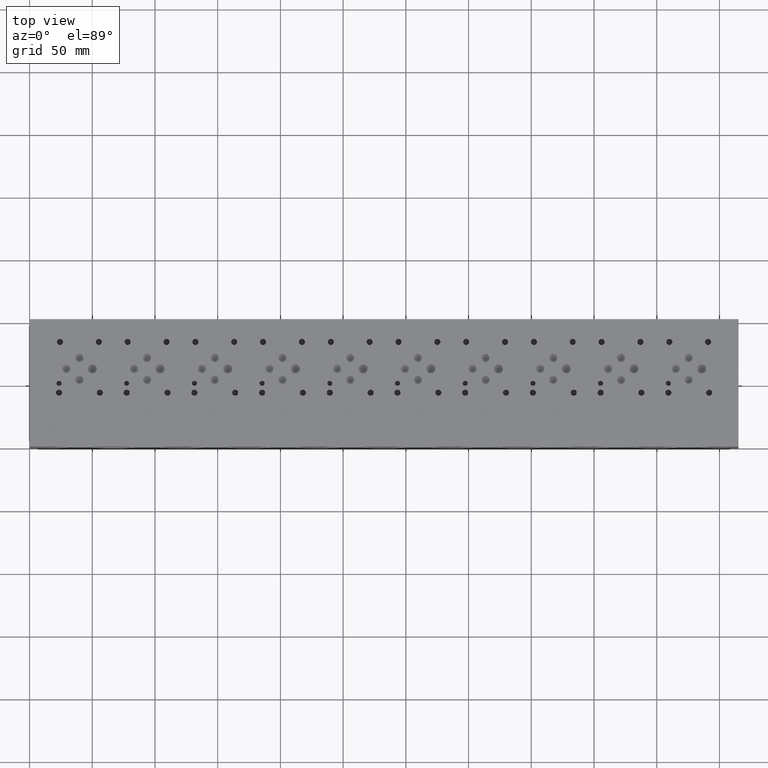
[diagram: clean part render]
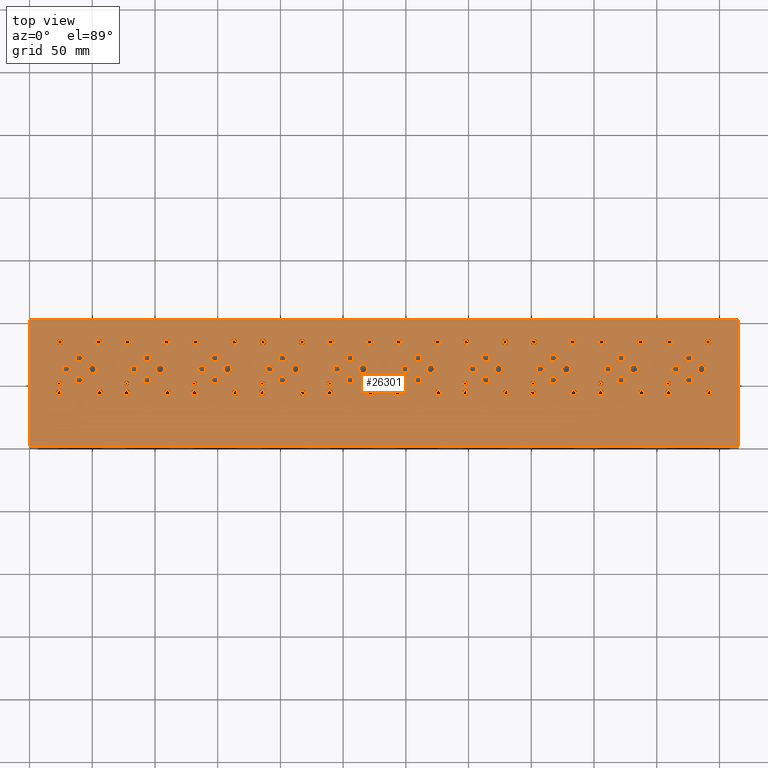
[diagram: same view with one face highlighted and labeled with its STEP entity id]
A machine part, top view. The second image highlights one B-rep face of the part: STEP entity #26301.
In plain terms, the highlighted planar face has unit normal (0, 0, 1).
Its self-contained STEP definition (entity closure, byte-faithful):
#1034=CIRCLE('',#27713,1.9812);
#1035=CIRCLE('',#27714,1.9812);
#1038=CIRCLE('',#27719,1.9812);
#1039=CIRCLE('',#27720,1.9812);
#1042=CIRCLE('',#27725,1.9812);
#1043=CIRCLE('',#27726,1.9812);
#1046=CIRCLE('',#27731,1.9812);
#1047=CIRCLE('',#27732,1.9812);
#1050=CIRCLE('',#27737,1.9812);
#1051=CIRCLE('',#27738,1.9812);
#1054=CIRCLE('',#27743,1.9812);
#1055=CIRCLE('',#27744,1.9812);
#1058=CIRCLE('',#27749,1.9812);
#1059=CIRCLE('',#27750,1.9812);
#1062=CIRCLE('',#27755,1.9812);
#1063=CIRCLE('',#27756,1.9812);
#1066=CIRCLE('',#27761,1.9812);
#1067=CIRCLE('',#27762,1.9812);
#1073=CIRCLE('',#27771,2.413);
#1074=CIRCLE('',#27772,2.413);
#1080=CIRCLE('',#27782,2.413);
#1081=CIRCLE('',#27783,2.413);
#1087=CIRCLE('',#27793,2.413);
#1088=CIRCLE('',#27794,2.413);
#1094=CIRCLE('',#27804,2.413);
#1095=CIRCLE('',#27805,2.413);
#1101=CIRCLE('',#27815,2.413);
#1102=CIRCLE('',#27816,2.413);
#1108=CIRCLE('',#27826,2.413);
#1109=CIRCLE('',#27827,2.413);
#1115=CIRCLE('',#27837,2.413);
#1116=CIRCLE('',#27838,2.413);
#1122=CIRCLE('',#27848,2.413);
#1123=CIRCLE('',#27849,2.413);
#1129=CIRCLE('',#27859,2.413);
#1130=CIRCLE('',#27860,2.413);
#1136=CIRCLE('',#27870,2.413);
#1137=CIRCLE('',#27871,2.413);
#1143=CIRCLE('',#27881,2.413);
#1144=CIRCLE('',#27882,2.413);
#1150=CIRCLE('',#27892,2.413);
#1151=CIRCLE('',#27893,2.413);
#1157=CIRCLE('',#27903,2.413);
#1158=CIRCLE('',#27904,2.413);
#1164=CIRCLE('',#27914,2.413);
#1165=CIRCLE('',#27915,2.413);
#1171=CIRCLE('',#27925,2.413);
#1172=CIRCLE('',#27926,2.413);
#1178=CIRCLE('',#27936,2.413);
#1179=CIRCLE('',#27937,2.413);
#1185=CIRCLE('',#27947,2.413);
#1186=CIRCLE('',#27948,2.413);
#1192=CIRCLE('',#27958,2.413);
#1193=CIRCLE('',#27959,2.413);
#1199=CIRCLE('',#27969,2.413);
#1200=CIRCLE('',#27970,2.413);
#1206=CIRCLE('',#27980,2.413);
#1207=CIRCLE('',#27981,2.413);
#1213=CIRCLE('',#27991,2.413);
#1214=CIRCLE('',#27992,2.413);
#1220=CIRCLE('',#28002,2.413);
#1221=CIRCLE('',#28003,2.413);
#1227=CIRCLE('',#28013,2.413);
#1228=CIRCLE('',#28014,2.413);
#1234=CIRCLE('',#28024,2.413);
#1235=CIRCLE('',#28025,2.413);
#1241=CIRCLE('',#28035,2.413);
#1242=CIRCLE('',#28036,2.413);
#1248=CIRCLE('',#28046,2.413);
#1249=CIRCLE('',#28047,2.413);
#1255=CIRCLE('',#28057,2.413);
#1256=CIRCLE('',#28058,2.413);
#1262=CIRCLE('',#28068,2.413);
#1263=CIRCLE('',#28069,2.413);
#1269=CIRCLE('',#28079,2.413);
#1270=CIRCLE('',#28080,2.413);
#1276=CIRCLE('',#28090,2.413);
#1277=CIRCLE('',#28091,2.413);
#1283=CIRCLE('',#28101,2.413);
#1284=CIRCLE('',#28102,2.413);
#1290=CIRCLE('',#28112,2.413);
#1291=CIRCLE('',#28113,2.413);
#1297=CIRCLE('',#28123,2.413);
#1298=CIRCLE('',#28124,2.413);
#1304=CIRCLE('',#28134,2.413);
#1305=CIRCLE('',#28135,2.413);
#1311=CIRCLE('',#28145,2.413);
#1312=CIRCLE('',#28146,2.413);
#1318=CIRCLE('',#28156,2.413);
#1319=CIRCLE('',#28157,2.413);
#1322=CIRCLE('',#28163,3.5687);
#1323=CIRCLE('',#28164,3.5687);
#1326=CIRCLE('',#28169,3.5687);
#1327=CIRCLE('',#28170,3.5687);
#1330=CIRCLE('',#28175,3.5687);
#1331=CIRCLE('',#28176,3.5687);
#1334=CIRCLE('',#28181,3.5687);
#1335=CIRCLE('',#28182,3.5687);
#1338=CIRCLE('',#28187,3.5687);
#1339=CIRCLE('',#28188,3.5687);
#1342=CIRCLE('',#28193,3.5687);
#1343=CIRCLE('',#28194,3.5687);
#1346=CIRCLE('',#28199,3.5687);
#1347=CIRCLE('',#28200,3.5687);
#1350=CIRCLE('',#28205,3.5687);
#1351=CIRCLE('',#28206,3.5687);
#1354=CIRCLE('',#28211,3.5687);
#1355=CIRCLE('',#28212,3.5687);
#1358=CIRCLE('',#28217,3.5687);
#1359=CIRCLE('',#28218,3.5687);
#1362=CIRCLE('',#28223,3.175);
#1363=CIRCLE('',#28224,3.175);
#1366=CIRCLE('',#28229,3.175);
#1367=CIRCLE('',#28230,3.175);
#1370=CIRCLE('',#28235,3.175);
#1371=CIRCLE('',#28236,3.175);
#1374=CIRCLE('',#28241,3.175);
#1375=CIRCLE('',#28242,3.175);
#1378=CIRCLE('',#28247,3.175);
#1379=CIRCLE('',#28248,3.175);
#1382=CIRCLE('',#28253,3.175);
#1383=CIRCLE('',#28254,3.175);
#1386=CIRCLE('',#28259,3.175);
#1387=CIRCLE('',#28260,3.175);
#1390=CIRCLE('',#28265,3.175);
#1391=CIRCLE('',#28266,3.175);
#1394=CIRCLE('',#28271,3.175);
#1395=CIRCLE('',#28272,3.175);
#1398=CIRCLE('',#28277,3.175);
#1399=CIRCLE('',#28278,3.175);
#1402=CIRCLE('',#28283,3.175);
#1403=CIRCLE('',#28284,3.175);
#1406=CIRCLE('',#28289,3.175);
#1407=CIRCLE('',#28290,3.175);
#1410=CIRCLE('',#28295,3.175);
#1411=CIRCLE('',#28296,3.175);
#1414=CIRCLE('',#28301,3.175);
#1415=CIRCLE('',#28302,3.175);
#1418=CIRCLE('',#28307,3.175);
#1419=CIRCLE('',#28308,3.175);
#1422=CIRCLE('',#28313,3.175);
#1423=CIRCLE('',#28314,3.175);
#1426=CIRCLE('',#28319,3.175);
#1427=CIRCLE('',#28320,3.175);
#1430=CIRCLE('',#28325,3.175);
#1431=CIRCLE('',#28326,3.175);
#1434=CIRCLE('',#28331,3.175);
#1435=CIRCLE('',#28332,3.175);
#1438=CIRCLE('',#28337,3.175);
#1439=CIRCLE('',#28338,3.175);
#1442=CIRCLE('',#28343,3.175);
#1443=CIRCLE('',#28344,3.175);
#1446=CIRCLE('',#28349,3.175);
#1447=CIRCLE('',#28350,3.175);
#1450=CIRCLE('',#28355,3.175);
#1451=CIRCLE('',#28356,3.175);
#1454=CIRCLE('',#28361,3.175);
#1455=CIRCLE('',#28362,3.175);
#1458=CIRCLE('',#28367,3.175);
#1459=CIRCLE('',#28368,3.175);
#1462=CIRCLE('',#28373,3.175);
#1463=CIRCLE('',#28374,3.175);
#1466=CIRCLE('',#28379,3.175);
#1467=CIRCLE('',#28380,3.175);
#1470=CIRCLE('',#28385,3.175);
#1471=CIRCLE('',#28386,3.175);
#1474=CIRCLE('',#28391,3.175);
#1475=CIRCLE('',#28392,3.175);
#1478=CIRCLE('',#28397,3.175);
#1479=CIRCLE('',#28398,3.175);
#1482=CIRCLE('',#28403,1.9812);
#1483=CIRCLE('',#28404,1.9812);
#1489=CIRCLE('',#28413,2.413);
#1490=CIRCLE('',#28414,2.413);
#1496=CIRCLE('',#28424,2.413);
#1497=CIRCLE('',#28425,2.413);
#1503=CIRCLE('',#28435,2.413);
#1504=CIRCLE('',#28436,2.413);
#1510=CIRCLE('',#28446,2.413);
#1511=CIRCLE('',#28447,2.413);
#1720=FACE_BOUND('',#5427,.T.);
#1721=FACE_BOUND('',#5428,.T.);
#1722=FACE_BOUND('',#5429,.T.);
#1723=FACE_BOUND('',#5430,.T.);
#1724=FACE_BOUND('',#5431,.T.);
#1725=FACE_BOUND('',#5432,.T.);
#1726=FACE_BOUND('',#5433,.T.);
#1727=FACE_BOUND('',#5434,.T.);
#1728=FACE_BOUND('',#5435,.T.);
#1729=FACE_BOUND('',#5436,.T.);
#1730=FACE_BOUND('',#5437,.T.);
#1731=FACE_BOUND('',#5438,.T.);
#1732=FACE_BOUND('',#5439,.T.);
#1733=FACE_BOUND('',#5440,.T.);
#1734=FACE_BOUND('',#5441,.T.);
#1735=FACE_BOUND('',#5442,.T.);
#1736=FACE_BOUND('',#5443,.T.);
#1737=FACE_BOUND('',#5444,.T.);
#1738=FACE_BOUND('',#5445,.T.);
#1739=FACE_BOUND('',#5446,.T.);
#1740=FACE_BOUND('',#5447,.T.);
#1741=FACE_BOUND('',#5448,.T.);
#1742=FACE_BOUND('',#5449,.T.);
#1743=FACE_BOUND('',#5450,.T.);
#1744=FACE_BOUND('',#5451,.T.);
#1745=FACE_BOUND('',#5452,.T.);
#1746=FACE_BOUND('',#5453,.T.);
#1747=FACE_BOUND('',#5454,.T.);
#1748=FACE_BOUND('',#5455,.T.);
#1749=FACE_BOUND('',#5456,.T.);
#1750=FACE_BOUND('',#5457,.T.);
#1751=FACE_BOUND('',#5458,.T.);
#1752=FACE_BOUND('',#5459,.T.);
#1753=FACE_BOUND('',#5460,.T.);
#1754=FACE_BOUND('',#5461,.T.);
#1755=FACE_BOUND('',#5462,.T.);
#1756=FACE_BOUND('',#5463,.T.);
#1757=FACE_BOUND('',#5464,.T.);
#1758=FACE_BOUND('',#5465,.T.);
#1759=FACE_BOUND('',#5466,.T.);
#1760=FACE_BOUND('',#5467,.T.);
#1761=FACE_BOUND('',#5468,.T.);
#1762=FACE_BOUND('',#5469,.T.);
#1763=FACE_BOUND('',#5470,.T.);
#1764=FACE_BOUND('',#5471,.T.);
#1765=FACE_BOUND('',#5472,.T.);
#1766=FACE_BOUND('',#5473,.T.);
#1767=FACE_BOUND('',#5474,.T.);
#1768=FACE_BOUND('',#5475,.T.);
#1769=FACE_BOUND('',#5476,.T.);
#1770=FACE_BOUND('',#5477,.T.);
#1771=FACE_BOUND('',#5478,.T.);
#1772=FACE_BOUND('',#5479,.T.);
#1773=FACE_BOUND('',#5480,.T.);
#1774=FACE_BOUND('',#5481,.T.);
#1775=FACE_BOUND('',#5482,.T.);
#1776=FACE_BOUND('',#5483,.T.);
#1777=FACE_BOUND('',#5484,.T.);
#1778=FACE_BOUND('',#5485,.T.);
#1779=FACE_BOUND('',#5486,.T.);
#1780=FACE_BOUND('',#5487,.T.);
#1781=FACE_BOUND('',#5488,.T.);
#1782=FACE_BOUND('',#5489,.T.);
#1783=FACE_BOUND('',#5490,.T.);
#1784=FACE_BOUND('',#5491,.T.);
#1785=FACE_BOUND('',#5492,.T.);
#1786=FACE_BOUND('',#5493,.T.);
#1787=FACE_BOUND('',#5494,.T.);
#1788=FACE_BOUND('',#5495,.T.);
#1789=FACE_BOUND('',#5496,.T.);
#1790=FACE_BOUND('',#5497,.T.);
#1791=FACE_BOUND('',#5498,.T.);
#1792=FACE_BOUND('',#5499,.T.);
#1793=FACE_BOUND('',#5500,.T.);
#1794=FACE_BOUND('',#5501,.T.);
#1795=FACE_BOUND('',#5502,.T.);
#1796=FACE_BOUND('',#5503,.T.);
#1797=FACE_BOUND('',#5504,.T.);
#1798=FACE_BOUND('',#5505,.T.);
#1799=FACE_BOUND('',#5506,.T.);
#1800=FACE_BOUND('',#5507,.T.);
#1801=FACE_BOUND('',#5508,.T.);
#1802=FACE_BOUND('',#5509,.T.);
#1803=FACE_BOUND('',#5510,.T.);
#1804=FACE_BOUND('',#5511,.T.);
#1805=FACE_BOUND('',#5512,.T.);
#1806=FACE_BOUND('',#5513,.T.);
#1807=FACE_BOUND('',#5514,.T.);
#1808=FACE_BOUND('',#5515,.T.);
#1809=FACE_BOUND('',#5516,.T.);
#2448=PLANE('',#28453);
#3833=FACE_OUTER_BOUND('',#5426,.T.);
#5426=EDGE_LOOP('',(#23699,#23700,#23701,#23702));
#5427=EDGE_LOOP('',(#23703,#23704));
#5428=EDGE_LOOP('',(#23705,#23706));
#5429=EDGE_LOOP('',(#23707,#23708));
#5430=EDGE_LOOP('',(#23709,#23710));
#5431=EDGE_LOOP('',(#23711,#23712));
#5432=EDGE_LOOP('',(#23713,#23714));
#5433=EDGE_LOOP('',(#23715,#23716));
#5434=EDGE_LOOP('',(#23717,#23718));
#5435=EDGE_LOOP('',(#23719,#23720));
#5436=EDGE_LOOP('',(#23721,#23722));
#5437=EDGE_LOOP('',(#23723,#23724));
#5438=EDGE_LOOP('',(#23725,#23726));
#5439=EDGE_LOOP('',(#23727,#23728));
#5440=EDGE_LOOP('',(#23729,#23730));
#5441=EDGE_LOOP('',(#23731,#23732));
#5442=EDGE_LOOP('',(#23733,#23734));
#5443=EDGE_LOOP('',(#23735,#23736));
#5444=EDGE_LOOP('',(#23737,#23738));
#5445=EDGE_LOOP('',(#23739,#23740));
#5446=EDGE_LOOP('',(#23741,#23742));
#5447=EDGE_LOOP('',(#23743,#23744));
#5448=EDGE_LOOP('',(#23745,#23746));
#5449=EDGE_LOOP('',(#23747,#23748));
#5450=EDGE_LOOP('',(#23749,#23750));
#5451=EDGE_LOOP('',(#23751,#23752));
#5452=EDGE_LOOP('',(#23753,#23754));
#5453=EDGE_LOOP('',(#23755,#23756));
#5454=EDGE_LOOP('',(#23757,#23758));
#5455=EDGE_LOOP('',(#23759,#23760));
#5456=EDGE_LOOP('',(#23761,#23762));
#5457=EDGE_LOOP('',(#23763,#23764));
#5458=EDGE_LOOP('',(#23765,#23766));
#5459=EDGE_LOOP('',(#23767,#23768));
#5460=EDGE_LOOP('',(#23769,#23770));
#5461=EDGE_LOOP('',(#23771,#23772));
#5462=EDGE_LOOP('',(#23773,#23774));
#5463=EDGE_LOOP('',(#23775,#23776));
#5464=EDGE_LOOP('',(#23777,#23778));
#5465=EDGE_LOOP('',(#23779,#23780));
#5466=EDGE_LOOP('',(#23781,#23782));
#5467=EDGE_LOOP('',(#23783,#23784));
#5468=EDGE_LOOP('',(#23785,#23786));
#5469=EDGE_LOOP('',(#23787,#23788));
#5470=EDGE_LOOP('',(#23789,#23790));
#5471=EDGE_LOOP('',(#23791,#23792));
#5472=EDGE_LOOP('',(#23793,#23794));
#5473=EDGE_LOOP('',(#23795,#23796));
#5474=EDGE_LOOP('',(#23797,#23798));
#5475=EDGE_LOOP('',(#23799,#23800));
#5476=EDGE_LOOP('',(#23801,#23802));
#5477=EDGE_LOOP('',(#23803,#23804));
#5478=EDGE_LOOP('',(#23805,#23806));
#5479=EDGE_LOOP('',(#23807,#23808));
#5480=EDGE_LOOP('',(#23809,#23810));
#5481=EDGE_LOOP('',(#23811,#23812));
#5482=EDGE_LOOP('',(#23813,#23814));
#5483=EDGE_LOOP('',(#23815,#23816));
#5484=EDGE_LOOP('',(#23817,#23818));
#5485=EDGE_LOOP('',(#23819,#23820));
#5486=EDGE_LOOP('',(#23821,#23822));
#5487=EDGE_LOOP('',(#23823,#23824));
#5488=EDGE_LOOP('',(#23825,#23826));
#5489=EDGE_LOOP('',(#23827,#23828));
#5490=EDGE_LOOP('',(#23829,#23830));
#5491=EDGE_LOOP('',(#23831,#23832));
#5492=EDGE_LOOP('',(#23833,#23834));
#5493=EDGE_LOOP('',(#23835,#23836));
#5494=EDGE_LOOP('',(#23837,#23838));
#5495=EDGE_LOOP('',(#23839,#23840));
#5496=EDGE_LOOP('',(#23841,#23842));
#5497=EDGE_LOOP('',(#23843,#23844));
#5498=EDGE_LOOP('',(#23845,#23846));
#5499=EDGE_LOOP('',(#23847,#23848));
#5500=EDGE_LOOP('',(#23849,#23850));
#5501=EDGE_LOOP('',(#23851,#23852));
#5502=EDGE_LOOP('',(#23853,#23854));
#5503=EDGE_LOOP('',(#23855,#23856));
#5504=EDGE_LOOP('',(#23857,#23858));
#5505=EDGE_LOOP('',(#23859,#23860));
#5506=EDGE_LOOP('',(#23861,#23862));
#5507=EDGE_LOOP('',(#23863,#23864));
#5508=EDGE_LOOP('',(#23865,#23866));
#5509=EDGE_LOOP('',(#23867,#23868));
#5510=EDGE_LOOP('',(#23869,#23870));
#5511=EDGE_LOOP('',(#23871,#23872));
#5512=EDGE_LOOP('',(#23873,#23874));
#5513=EDGE_LOOP('',(#23875,#23876));
#5514=EDGE_LOOP('',(#23877,#23878));
#5515=EDGE_LOOP('',(#23879,#23880));
#5516=EDGE_LOOP('',(#23881,#23882));
#5552=LINE('',#35064,#7674);
#5612=LINE('',#35339,#7734);
#5942=LINE('',#37503,#8064);
#7639=LINE('',#45936,#9761);
#7674=VECTOR('',#28511,10.);
#7734=VECTOR('',#28625,10.);
#8064=VECTOR('',#29155,10.);
#9761=VECTOR('',#34846,10.);
#10326=VERTEX_POINT('',#35061);
#10327=VERTEX_POINT('',#35063);
#10386=VERTEX_POINT('',#35336);
#10387=VERTEX_POINT('',#35338);
#12310=VERTEX_POINT('',#44411);
#12311=VERTEX_POINT('',#44412);
#12315=VERTEX_POINT('',#44424);
#12316=VERTEX_POINT('',#44425);
#12320=VERTEX_POINT('',#44437);
#12321=VERTEX_POINT('',#44438);
#12325=VERTEX_POINT('',#44450);
#12326=VERTEX_POINT('',#44451);
#12330=VERTEX_POINT('',#44463);
#12331=VERTEX_POINT('',#44464);
#12335=VERTEX_POINT('',#44476);
#12336=VERTEX_POINT('',#44477);
#12340=VERTEX_POINT('',#44489);
#12341=VERTEX_POINT('',#44490);
#12345=VERTEX_POINT('',#44502);
#12346=VERTEX_POINT('',#44503);
#12350=VERTEX_POINT('',#44515);
#12351=VERTEX_POINT('',#44516);
#12358=VERTEX_POINT('',#44535);
#12359=VERTEX_POINT('',#44536);
#12366=VERTEX_POINT('',#44557);
#12367=VERTEX_POINT('',#44558);
#12374=VERTEX_POINT('',#44579);
#12375=VERTEX_POINT('',#44580);
#12382=VERTEX_POINT('',#44601);
#12383=VERTEX_POINT('',#44602);
#12390=VERTEX_POINT('',#44623);
#12391=VERTEX_POINT('',#44624);
#12398=VERTEX_POINT('',#44645);
#12399=VERTEX_POINT('',#44646);
#12406=VERTEX_POINT('',#44667);
#12407=VERTEX_POINT('',#44668);
#12414=VERTEX_POINT('',#44689);
#12415=VERTEX_POINT('',#44690);
#12422=VERTEX_POINT('',#44711);
#12423=VERTEX_POINT('',#44712);
#12430=VERTEX_POINT('',#44733);
#12431=VERTEX_POINT('',#44734);
#12438=VERTEX_POINT('',#44755);
#12439=VERTEX_POINT('',#44756);
#12446=VERTEX_POINT('',#44777);
#12447=VERTEX_POINT('',#44778);
#12454=VERTEX_POINT('',#44799);
#12455=VERTEX_POINT('',#44800);
#12462=VERTEX_POINT('',#44821);
#12463=VERTEX_POINT('',#44822);
#12470=VERTEX_POINT('',#44843);
#12471=VERTEX_POINT('',#44844);
#12478=VERTEX_POINT('',#44865);
#12479=VERTEX_POINT('',#44866);
#12486=VERTEX_POINT('',#44887);
#12487=VERTEX_POINT('',#44888);
#12494=VERTEX_POINT('',#44909);
#12495=VERTEX_POINT('',#44910);
#12502=VERTEX_POINT('',#44931);
#12503=VERTEX_POINT('',#44932);
#12510=VERTEX_POINT('',#44953);
#12511=VERTEX_POINT('',#44954);
#12518=VERTEX_POINT('',#44975);
#12519=VERTEX_POINT('',#44976);
#12526=VERTEX_POINT('',#44997);
#12527=VERTEX_POINT('',#44998);
#12534=VERTEX_POINT('',#45019);
#12535=VERTEX_POINT('',#45020);
#12542=VERTEX_POINT('',#45041);
#12543=VERTEX_POINT('',#45042);
#12550=VERTEX_POINT('',#45063);
#12551=VERTEX_POINT('',#45064);
#12558=VERTEX_POINT('',#45085);
#12559=VERTEX_POINT('',#45086);
#12566=VERTEX_POINT('',#45107);
#12567=VERTEX_POINT('',#45108);
#12574=VERTEX_POINT('',#45129);
#12575=VERTEX_POINT('',#45130);
#12582=VERTEX_POINT('',#45151);
#12583=VERTEX_POINT('',#45152);
#12590=VERTEX_POINT('',#45173);
#12591=VERTEX_POINT('',#45174);
#12598=VERTEX_POINT('',#45195);
#12599=VERTEX_POINT('',#45196);
#12606=VERTEX_POINT('',#45217);
#12607=VERTEX_POINT('',#45218);
#12614=VERTEX_POINT('',#45239);
#12615=VERTEX_POINT('',#45240);
#12622=VERTEX_POINT('',#45261);
#12623=VERTEX_POINT('',#45262);
#12630=VERTEX_POINT('',#45283);
#12631=VERTEX_POINT('',#45284);
#12638=VERTEX_POINT('',#45305);
#12639=VERTEX_POINT('',#45306);
#12643=VERTEX_POINT('',#45320);
#12644=VERTEX_POINT('',#45321);
#12648=VERTEX_POINT('',#45333);
#12649=VERTEX_POINT('',#45334);
#12653=VERTEX_POINT('',#45346);
#12654=VERTEX_POINT('',#45347);
#12658=VERTEX_POINT('',#45359);
#12659=VERTEX_POINT('',#45360);
#12663=VERTEX_POINT('',#45372);
#12664=VERTEX_POINT('',#45373);
#12668=VERTEX_POINT('',#45385);
#12669=VERTEX_POINT('',#45386);
#12673=VERTEX_POINT('',#45398);
#12674=VERTEX_POINT('',#45399);
#12678=VERTEX_POINT('',#45411);
#12679=VERTEX_POINT('',#45412);
#12683=VERTEX_POINT('',#45424);
#12684=VERTEX_POINT('',#45425);
#12688=VERTEX_POINT('',#45437);
#12689=VERTEX_POINT('',#45438);
#12693=VERTEX_POINT('',#45450);
#12694=VERTEX_POINT('',#45451);
#12698=VERTEX_POINT('',#45463);
#12699=VERTEX_POINT('',#45464);
#12703=VERTEX_POINT('',#45476);
#12704=VERTEX_POINT('',#45477);
#12708=VERTEX_POINT('',#45489);
#12709=VERTEX_POINT('',#45490);
#12713=VERTEX_POINT('',#45502);
#12714=VERTEX_POINT('',#45503);
#12718=VERTEX_POINT('',#45515);
#12719=VERTEX_POINT('',#45516);
#12723=VERTEX_POINT('',#45528);
#12724=VERTEX_POINT('',#45529);
#12728=VERTEX_POINT('',#45541);
#12729=VERTEX_POINT('',#45542);
#12733=VERTEX_POINT('',#45554);
#12734=VERTEX_POINT('',#45555);
#12738=VERTEX_POINT('',#45567);
#12739=VERTEX_POINT('',#45568);
#12743=VERTEX_POINT('',#45580);
#12744=VERTEX_POINT('',#45581);
#12748=VERTEX_POINT('',#45593);
#12749=VERTEX_POINT('',#45594);
#12753=VERTEX_POINT('',#45606);
#12754=VERTEX_POINT('',#45607);
#12758=VERTEX_POINT('',#45619);
#12759=VERTEX_POINT('',#45620);
#12763=VERTEX_POINT('',#45632);
#12764=VERTEX_POINT('',#45633);
#12768=VERTEX_POINT('',#45645);
#12769=VERTEX_POINT('',#45646);
#12773=VERTEX_POINT('',#45658);
#12774=VERTEX_POINT('',#45659);
#12778=VERTEX_POINT('',#45671);
#12779=VERTEX_POINT('',#45672);
#12783=VERTEX_POINT('',#45684);
#12784=VERTEX_POINT('',#45685);
#12788=VERTEX_POINT('',#45697);
#12789=VERTEX_POINT('',#45698);
#12793=VERTEX_POINT('',#45710);
#12794=VERTEX_POINT('',#45711);
#12798=VERTEX_POINT('',#45723);
#12799=VERTEX_POINT('',#45724);
#12803=VERTEX_POINT('',#45736);
#12804=VERTEX_POINT('',#45737);
#12808=VERTEX_POINT('',#45749);
#12809=VERTEX_POINT('',#45750);
#12813=VERTEX_POINT('',#45762);
#12814=VERTEX_POINT('',#45763);
#12818=VERTEX_POINT('',#45775);
#12819=VERTEX_POINT('',#45776);
#12823=VERTEX_POINT('',#45788);
#12824=VERTEX_POINT('',#45789);
#12828=VERTEX_POINT('',#45801);
#12829=VERTEX_POINT('',#45802);
#12833=VERTEX_POINT('',#45814);
#12834=VERTEX_POINT('',#45815);
#12838=VERTEX_POINT('',#45827);
#12839=VERTEX_POINT('',#45828);
#12843=VERTEX_POINT('',#45840);
#12844=VERTEX_POINT('',#45841);
#12851=VERTEX_POINT('',#45860);
#12852=VERTEX_POINT('',#45861);
#12859=VERTEX_POINT('',#45882);
#12860=VERTEX_POINT('',#45883);
#12867=VERTEX_POINT('',#45904);
#12868=VERTEX_POINT('',#45905);
#12875=VERTEX_POINT('',#45926);
#12876=VERTEX_POINT('',#45927);
#12927=EDGE_CURVE('',#10327,#10326,#5552,.T.);
#13011=EDGE_CURVE('',#10387,#10386,#5612,.T.);
#13523=EDGE_CURVE('',#10386,#10327,#5942,.T.);
#15848=EDGE_CURVE('',#12310,#12311,#1034,.T.);
#15849=EDGE_CURVE('',#12311,#12310,#1035,.T.);
#15854=EDGE_CURVE('',#12315,#12316,#1038,.T.);
#15855=EDGE_CURVE('',#12316,#12315,#1039,.T.);
#15860=EDGE_CURVE('',#12320,#12321,#1042,.T.);
#15861=EDGE_CURVE('',#12321,#12320,#1043,.T.);
#15866=EDGE_CURVE('',#12325,#12326,#1046,.T.);
#15867=EDGE_CURVE('',#12326,#12325,#1047,.T.);
#15872=EDGE_CURVE('',#12330,#12331,#1050,.T.);
#15873=EDGE_CURVE('',#12331,#12330,#1051,.T.);
#15878=EDGE_CURVE('',#12335,#12336,#1054,.T.);
#15879=EDGE_CURVE('',#12336,#12335,#1055,.T.);
#15884=EDGE_CURVE('',#12340,#12341,#1058,.T.);
#15885=EDGE_CURVE('',#12341,#12340,#1059,.T.);
#15890=EDGE_CURVE('',#12345,#12346,#1062,.T.);
#15891=EDGE_CURVE('',#12346,#12345,#1063,.T.);
#15896=EDGE_CURVE('',#12350,#12351,#1066,.T.);
#15897=EDGE_CURVE('',#12351,#12350,#1067,.T.);
#15905=EDGE_CURVE('',#12358,#12359,#1073,.T.);
#15906=EDGE_CURVE('',#12359,#12358,#1074,.T.);
#15915=EDGE_CURVE('',#12366,#12367,#1080,.T.);
#15916=EDGE_CURVE('',#12367,#12366,#1081,.T.);
#15925=EDGE_CURVE('',#12374,#12375,#1087,.T.);
#15926=EDGE_CURVE('',#12375,#12374,#1088,.T.);
#15935=EDGE_CURVE('',#12382,#12383,#1094,.T.);
#15936=EDGE_CURVE('',#12383,#12382,#1095,.T.);
#15945=EDGE_CURVE('',#12390,#12391,#1101,.T.);
#15946=EDGE_CURVE('',#12391,#12390,#1102,.T.);
#15955=EDGE_CURVE('',#12398,#12399,#1108,.T.);
#15956=EDGE_CURVE('',#12399,#12398,#1109,.T.);
#15965=EDGE_CURVE('',#12406,#12407,#1115,.T.);
#15966=EDGE_CURVE('',#12407,#12406,#1116,.T.);
#15975=EDGE_CURVE('',#12414,#12415,#1122,.T.);
#15976=EDGE_CURVE('',#12415,#12414,#1123,.T.);
#15985=EDGE_CURVE('',#12422,#12423,#1129,.T.);
#15986=EDGE_CURVE('',#12423,#12422,#1130,.T.);
#15995=EDGE_CURVE('',#12430,#12431,#1136,.T.);
#15996=EDGE_CURVE('',#12431,#12430,#1137,.T.);
#16005=EDGE_CURVE('',#12438,#12439,#1143,.T.);
#16006=EDGE_CURVE('',#12439,#12438,#1144,.T.);
#16015=EDGE_CURVE('',#12446,#12447,#1150,.T.);
#16016=EDGE_CURVE('',#12447,#12446,#1151,.T.);
#16025=EDGE_CURVE('',#12454,#12455,#1157,.T.);
#16026=EDGE_CURVE('',#12455,#12454,#1158,.T.);
#16035=EDGE_CURVE('',#12462,#12463,#1164,.T.);
#16036=EDGE_CURVE('',#12463,#12462,#1165,.T.);
#16045=EDGE_CURVE('',#12470,#12471,#1171,.T.);
#16046=EDGE_CURVE('',#12471,#12470,#1172,.T.);
#16055=EDGE_CURVE('',#12478,#12479,#1178,.T.);
#16056=EDGE_CURVE('',#12479,#12478,#1179,.T.);
#16065=EDGE_CURVE('',#12486,#12487,#1185,.T.);
#16066=EDGE_CURVE('',#12487,#12486,#1186,.T.);
#16075=EDGE_CURVE('',#12494,#12495,#1192,.T.);
#16076=EDGE_CURVE('',#12495,#12494,#1193,.T.);
#16085=EDGE_CURVE('',#12502,#12503,#1199,.T.);
#16086=EDGE_CURVE('',#12503,#12502,#1200,.T.);
#16095=EDGE_CURVE('',#12510,#12511,#1206,.T.);
#16096=EDGE_CURVE('',#12511,#12510,#1207,.T.);
#16105=EDGE_CURVE('',#12518,#12519,#1213,.T.);
#16106=EDGE_CURVE('',#12519,#12518,#1214,.T.);
#16115=EDGE_CURVE('',#12526,#12527,#1220,.T.);
#16116=EDGE_CURVE('',#12527,#12526,#1221,.T.);
#16125=EDGE_CURVE('',#12534,#12535,#1227,.T.);
#16126=EDGE_CURVE('',#12535,#12534,#1228,.T.);
#16135=EDGE_CURVE('',#12542,#12543,#1234,.T.);
#16136=EDGE_CURVE('',#12543,#12542,#1235,.T.);
#16145=EDGE_CURVE('',#12550,#12551,#1241,.T.);
#16146=EDGE_CURVE('',#12551,#12550,#1242,.T.);
#16155=EDGE_CURVE('',#12558,#12559,#1248,.T.);
#16156=EDGE_CURVE('',#12559,#12558,#1249,.T.);
#16165=EDGE_CURVE('',#12566,#12567,#1255,.T.);
#16166=EDGE_CURVE('',#12567,#12566,#1256,.T.);
#16175=EDGE_CURVE('',#12574,#12575,#1262,.T.);
#16176=EDGE_CURVE('',#12575,#12574,#1263,.T.);
#16185=EDGE_CURVE('',#12582,#12583,#1269,.T.);
#16186=EDGE_CURVE('',#12583,#12582,#1270,.T.);
#16195=EDGE_CURVE('',#12590,#12591,#1276,.T.);
#16196=EDGE_CURVE('',#12591,#12590,#1277,.T.);
#16205=EDGE_CURVE('',#12598,#12599,#1283,.T.);
#16206=EDGE_CURVE('',#12599,#12598,#1284,.T.);
#16215=EDGE_CURVE('',#12606,#12607,#1290,.T.);
#16216=EDGE_CURVE('',#12607,#12606,#1291,.T.);
#16225=EDGE_CURVE('',#12614,#12615,#1297,.T.);
#16226=EDGE_CURVE('',#12615,#12614,#1298,.T.);
#16235=EDGE_CURVE('',#12622,#12623,#1304,.T.);
#16236=EDGE_CURVE('',#12623,#12622,#1305,.T.);
#16245=EDGE_CURVE('',#12630,#12631,#1311,.T.);
#16246=EDGE_CURVE('',#12631,#12630,#1312,.T.);
#16255=EDGE_CURVE('',#12638,#12639,#1318,.T.);
#16256=EDGE_CURVE('',#12639,#12638,#1319,.T.);
#16262=EDGE_CURVE('',#12643,#12644,#1322,.T.);
#16263=EDGE_CURVE('',#12644,#12643,#1323,.T.);
#16268=EDGE_CURVE('',#12648,#12649,#1326,.T.);
#16269=EDGE_CURVE('',#12649,#12648,#1327,.T.);
#16274=EDGE_CURVE('',#12653,#12654,#1330,.T.);
#16275=EDGE_CURVE('',#12654,#12653,#1331,.T.);
#16280=EDGE_CURVE('',#12658,#12659,#1334,.T.);
#16281=EDGE_CURVE('',#12659,#12658,#1335,.T.);
#16286=EDGE_CURVE('',#12663,#12664,#1338,.T.);
#16287=EDGE_CURVE('',#12664,#12663,#1339,.T.);
#16292=EDGE_CURVE('',#12668,#12669,#1342,.T.);
#16293=EDGE_CURVE('',#12669,#12668,#1343,.T.);
#16298=EDGE_CURVE('',#12673,#12674,#1346,.T.);
#16299=EDGE_CURVE('',#12674,#12673,#1347,.T.);
#16304=EDGE_CURVE('',#12678,#12679,#1350,.T.);
#16305=EDGE_CURVE('',#12679,#12678,#1351,.T.);
#16310=EDGE_CURVE('',#12683,#12684,#1354,.T.);
#16311=EDGE_CURVE('',#12684,#12683,#1355,.T.);
#16316=EDGE_CURVE('',#12688,#12689,#1358,.T.);
#16317=EDGE_CURVE('',#12689,#12688,#1359,.T.);
#16322=EDGE_CURVE('',#12693,#12694,#1362,.T.);
#16323=EDGE_CURVE('',#12694,#12693,#1363,.T.);
#16328=EDGE_CURVE('',#12698,#12699,#1366,.T.);
#16329=EDGE_CURVE('',#12699,#12698,#1367,.T.);
#16334=EDGE_CURVE('',#12703,#12704,#1370,.T.);
#16335=EDGE_CURVE('',#12704,#12703,#1371,.T.);
#16340=EDGE_CURVE('',#12708,#12709,#1374,.T.);
#16341=EDGE_CURVE('',#12709,#12708,#1375,.T.);
#16346=EDGE_CURVE('',#12713,#12714,#1378,.T.);
#16347=EDGE_CURVE('',#12714,#12713,#1379,.T.);
#16352=EDGE_CURVE('',#12718,#12719,#1382,.T.);
#16353=EDGE_CURVE('',#12719,#12718,#1383,.T.);
#16358=EDGE_CURVE('',#12723,#12724,#1386,.T.);
#16359=EDGE_CURVE('',#12724,#12723,#1387,.T.);
#16364=EDGE_CURVE('',#12728,#12729,#1390,.T.);
#16365=EDGE_CURVE('',#12729,#12728,#1391,.T.);
#16370=EDGE_CURVE('',#12733,#12734,#1394,.T.);
#16371=EDGE_CURVE('',#12734,#12733,#1395,.T.);
#16376=EDGE_CURVE('',#12738,#12739,#1398,.T.);
#16377=EDGE_CURVE('',#12739,#12738,#1399,.T.);
#16382=EDGE_CURVE('',#12743,#12744,#1402,.T.);
#16383=EDGE_CURVE('',#12744,#12743,#1403,.T.);
#16388=EDGE_CURVE('',#12748,#12749,#1406,.T.);
#16389=EDGE_CURVE('',#12749,#12748,#1407,.T.);
#16394=EDGE_CURVE('',#12753,#12754,#1410,.T.);
#16395=EDGE_CURVE('',#12754,#12753,#1411,.T.);
#16400=EDGE_CURVE('',#12758,#12759,#1414,.T.);
#16401=EDGE_CURVE('',#12759,#12758,#1415,.T.);
#16406=EDGE_CURVE('',#12763,#12764,#1418,.T.);
#16407=EDGE_CURVE('',#12764,#12763,#1419,.T.);
#16412=EDGE_CURVE('',#12768,#12769,#1422,.T.);
#16413=EDGE_CURVE('',#12769,#12768,#1423,.T.);
#16418=EDGE_CURVE('',#12773,#12774,#1426,.T.);
#16419=EDGE_CURVE('',#12774,#12773,#1427,.T.);
#16424=EDGE_CURVE('',#12778,#12779,#1430,.T.);
#16425=EDGE_CURVE('',#12779,#12778,#1431,.T.);
#16430=EDGE_CURVE('',#12783,#12784,#1434,.T.);
#16431=EDGE_CURVE('',#12784,#12783,#1435,.T.);
#16436=EDGE_CURVE('',#12788,#12789,#1438,.T.);
#16437=EDGE_CURVE('',#12789,#12788,#1439,.T.);
#16442=EDGE_CURVE('',#12793,#12794,#1442,.T.);
#16443=EDGE_CURVE('',#12794,#12793,#1443,.T.);
#16448=EDGE_CURVE('',#12798,#12799,#1446,.T.);
#16449=EDGE_CURVE('',#12799,#12798,#1447,.T.);
#16454=EDGE_CURVE('',#12803,#12804,#1450,.T.);
#16455=EDGE_CURVE('',#12804,#12803,#1451,.T.);
#16460=EDGE_CURVE('',#12808,#12809,#1454,.T.);
#16461=EDGE_CURVE('',#12809,#12808,#1455,.T.);
#16466=EDGE_CURVE('',#12813,#12814,#1458,.T.);
#16467=EDGE_CURVE('',#12814,#12813,#1459,.T.);
#16472=EDGE_CURVE('',#12818,#12819,#1462,.T.);
#16473=EDGE_CURVE('',#12819,#12818,#1463,.T.);
#16478=EDGE_CURVE('',#12823,#12824,#1466,.T.);
#16479=EDGE_CURVE('',#12824,#12823,#1467,.T.);
#16484=EDGE_CURVE('',#12828,#12829,#1470,.T.);
#16485=EDGE_CURVE('',#12829,#12828,#1471,.T.);
#16490=EDGE_CURVE('',#12833,#12834,#1474,.T.);
#16491=EDGE_CURVE('',#12834,#12833,#1475,.T.);
#16496=EDGE_CURVE('',#12838,#12839,#1478,.T.);
#16497=EDGE_CURVE('',#12839,#12838,#1479,.T.);
#16502=EDGE_CURVE('',#12843,#12844,#1482,.T.);
#16503=EDGE_CURVE('',#12844,#12843,#1483,.T.);
#16511=EDGE_CURVE('',#12851,#12852,#1489,.T.);
#16512=EDGE_CURVE('',#12852,#12851,#1490,.T.);
#16521=EDGE_CURVE('',#12859,#12860,#1496,.T.);
#16522=EDGE_CURVE('',#12860,#12859,#1497,.T.);
#16531=EDGE_CURVE('',#12867,#12868,#1503,.T.);
#16532=EDGE_CURVE('',#12868,#12867,#1504,.T.);
#16541=EDGE_CURVE('',#12875,#12876,#1510,.T.);
#16542=EDGE_CURVE('',#12876,#12875,#1511,.T.);
#16546=EDGE_CURVE('',#10326,#10387,#7639,.T.);
#23699=ORIENTED_EDGE('',*,*,#13523,.T.);
#23700=ORIENTED_EDGE('',*,*,#12927,.T.);
#23701=ORIENTED_EDGE('',*,*,#16546,.T.);
#23702=ORIENTED_EDGE('',*,*,#13011,.T.);
#23703=ORIENTED_EDGE('',*,*,#15848,.T.);
#23704=ORIENTED_EDGE('',*,*,#15849,.T.);
#23705=ORIENTED_EDGE('',*,*,#15854,.T.);
#23706=ORIENTED_EDGE('',*,*,#15855,.T.);
#23707=ORIENTED_EDGE('',*,*,#15860,.T.);
#23708=ORIENTED_EDGE('',*,*,#15861,.T.);
#23709=ORIENTED_EDGE('',*,*,#15866,.T.);
#23710=ORIENTED_EDGE('',*,*,#15867,.T.);
#23711=ORIENTED_EDGE('',*,*,#15872,.T.);
#23712=ORIENTED_EDGE('',*,*,#15873,.T.);
#23713=ORIENTED_EDGE('',*,*,#15878,.T.);
#23714=ORIENTED_EDGE('',*,*,#15879,.T.);
#23715=ORIENTED_EDGE('',*,*,#15884,.T.);
#23716=ORIENTED_EDGE('',*,*,#15885,.T.);
#23717=ORIENTED_EDGE('',*,*,#15890,.T.);
#23718=ORIENTED_EDGE('',*,*,#15891,.T.);
#23719=ORIENTED_EDGE('',*,*,#15896,.T.);
#23720=ORIENTED_EDGE('',*,*,#15897,.T.);
#23721=ORIENTED_EDGE('',*,*,#15905,.T.);
#23722=ORIENTED_EDGE('',*,*,#15906,.T.);
#23723=ORIENTED_EDGE('',*,*,#15915,.T.);
#23724=ORIENTED_EDGE('',*,*,#15916,.T.);
#23725=ORIENTED_EDGE('',*,*,#15925,.T.);
#23726=ORIENTED_EDGE('',*,*,#15926,.T.);
#23727=ORIENTED_EDGE('',*,*,#15935,.T.);
#23728=ORIENTED_EDGE('',*,*,#15936,.T.);
#23729=ORIENTED_EDGE('',*,*,#15945,.T.);
#23730=ORIENTED_EDGE('',*,*,#15946,.T.);
#23731=ORIENTED_EDGE('',*,*,#15955,.T.);
#23732=ORIENTED_EDGE('',*,*,#15956,.T.);
#23733=ORIENTED_EDGE('',*,*,#15965,.T.);
#23734=ORIENTED_EDGE('',*,*,#15966,.T.);
#23735=ORIENTED_EDGE('',*,*,#15975,.T.);
#23736=ORIENTED_EDGE('',*,*,#15976,.T.);
#23737=ORIENTED_EDGE('',*,*,#15985,.T.);
#23738=ORIENTED_EDGE('',*,*,#15986,.T.);
#23739=ORIENTED_EDGE('',*,*,#15995,.T.);
#23740=ORIENTED_EDGE('',*,*,#15996,.T.);
#23741=ORIENTED_EDGE('',*,*,#16005,.T.);
#23742=ORIENTED_EDGE('',*,*,#16006,.T.);
#23743=ORIENTED_EDGE('',*,*,#16015,.T.);
#23744=ORIENTED_EDGE('',*,*,#16016,.T.);
#23745=ORIENTED_EDGE('',*,*,#16025,.T.);
#23746=ORIENTED_EDGE('',*,*,#16026,.T.);
#23747=ORIENTED_EDGE('',*,*,#16035,.T.);
#23748=ORIENTED_EDGE('',*,*,#16036,.T.);
#23749=ORIENTED_EDGE('',*,*,#16045,.T.);
#23750=ORIENTED_EDGE('',*,*,#16046,.T.);
#23751=ORIENTED_EDGE('',*,*,#16055,.T.);
#23752=ORIENTED_EDGE('',*,*,#16056,.T.);
#23753=ORIENTED_EDGE('',*,*,#16065,.T.);
#23754=ORIENTED_EDGE('',*,*,#16066,.T.);
#23755=ORIENTED_EDGE('',*,*,#16075,.T.);
#23756=ORIENTED_EDGE('',*,*,#16076,.T.);
#23757=ORIENTED_EDGE('',*,*,#16085,.T.);
#23758=ORIENTED_EDGE('',*,*,#16086,.T.);
#23759=ORIENTED_EDGE('',*,*,#16095,.T.);
#23760=ORIENTED_EDGE('',*,*,#16096,.T.);
#23761=ORIENTED_EDGE('',*,*,#16105,.T.);
#23762=ORIENTED_EDGE('',*,*,#16106,.T.);
#23763=ORIENTED_EDGE('',*,*,#16115,.T.);
#23764=ORIENTED_EDGE('',*,*,#16116,.T.);
#23765=ORIENTED_EDGE('',*,*,#16125,.T.);
#23766=ORIENTED_EDGE('',*,*,#16126,.T.);
#23767=ORIENTED_EDGE('',*,*,#16135,.T.);
#23768=ORIENTED_EDGE('',*,*,#16136,.T.);
#23769=ORIENTED_EDGE('',*,*,#16145,.T.);
#23770=ORIENTED_EDGE('',*,*,#16146,.T.);
#23771=ORIENTED_EDGE('',*,*,#16155,.T.);
#23772=ORIENTED_EDGE('',*,*,#16156,.T.);
#23773=ORIENTED_EDGE('',*,*,#16165,.T.);
#23774=ORIENTED_EDGE('',*,*,#16166,.T.);
#23775=ORIENTED_EDGE('',*,*,#16175,.T.);
#23776=ORIENTED_EDGE('',*,*,#16176,.T.);
#23777=ORIENTED_EDGE('',*,*,#16185,.T.);
#23778=ORIENTED_EDGE('',*,*,#16186,.T.);
#23779=ORIENTED_EDGE('',*,*,#16195,.T.);
#23780=ORIENTED_EDGE('',*,*,#16196,.T.);
#23781=ORIENTED_EDGE('',*,*,#16205,.T.);
#23782=ORIENTED_EDGE('',*,*,#16206,.T.);
#23783=ORIENTED_EDGE('',*,*,#16215,.T.);
#23784=ORIENTED_EDGE('',*,*,#16216,.T.);
#23785=ORIENTED_EDGE('',*,*,#16225,.T.);
#23786=ORIENTED_EDGE('',*,*,#16226,.T.);
#23787=ORIENTED_EDGE('',*,*,#16235,.T.);
#23788=ORIENTED_EDGE('',*,*,#16236,.T.);
#23789=ORIENTED_EDGE('',*,*,#16245,.T.);
#23790=ORIENTED_EDGE('',*,*,#16246,.T.);
#23791=ORIENTED_EDGE('',*,*,#16255,.T.);
#23792=ORIENTED_EDGE('',*,*,#16256,.T.);
#23793=ORIENTED_EDGE('',*,*,#16262,.T.);
#23794=ORIENTED_EDGE('',*,*,#16263,.T.);
#23795=ORIENTED_EDGE('',*,*,#16268,.T.);
#23796=ORIENTED_EDGE('',*,*,#16269,.T.);
#23797=ORIENTED_EDGE('',*,*,#16274,.T.);
#23798=ORIENTED_EDGE('',*,*,#16275,.T.);
#23799=ORIENTED_EDGE('',*,*,#16280,.T.);
#23800=ORIENTED_EDGE('',*,*,#16281,.T.);
#23801=ORIENTED_EDGE('',*,*,#16286,.T.);
#23802=ORIENTED_EDGE('',*,*,#16287,.T.);
#23803=ORIENTED_EDGE('',*,*,#16292,.T.);
#23804=ORIENTED_EDGE('',*,*,#16293,.T.);
#23805=ORIENTED_EDGE('',*,*,#16298,.T.);
#23806=ORIENTED_EDGE('',*,*,#16299,.T.);
#23807=ORIENTED_EDGE('',*,*,#16304,.T.);
#23808=ORIENTED_EDGE('',*,*,#16305,.T.);
#23809=ORIENTED_EDGE('',*,*,#16310,.T.);
#23810=ORIENTED_EDGE('',*,*,#16311,.T.);
#23811=ORIENTED_EDGE('',*,*,#16316,.T.);
#23812=ORIENTED_EDGE('',*,*,#16317,.T.);
#23813=ORIENTED_EDGE('',*,*,#16322,.T.);
#23814=ORIENTED_EDGE('',*,*,#16323,.T.);
#23815=ORIENTED_EDGE('',*,*,#16328,.T.);
#23816=ORIENTED_EDGE('',*,*,#16329,.T.);
#23817=ORIENTED_EDGE('',*,*,#16334,.T.);
#23818=ORIENTED_EDGE('',*,*,#16335,.T.);
#23819=ORIENTED_EDGE('',*,*,#16340,.T.);
#23820=ORIENTED_EDGE('',*,*,#16341,.T.);
#23821=ORIENTED_EDGE('',*,*,#16346,.T.);
#23822=ORIENTED_EDGE('',*,*,#16347,.T.);
#23823=ORIENTED_EDGE('',*,*,#16352,.T.);
#23824=ORIENTED_EDGE('',*,*,#16353,.T.);
#23825=ORIENTED_EDGE('',*,*,#16358,.T.);
#23826=ORIENTED_EDGE('',*,*,#16359,.T.);
#23827=ORIENTED_EDGE('',*,*,#16364,.T.);
#23828=ORIENTED_EDGE('',*,*,#16365,.T.);
#23829=ORIENTED_EDGE('',*,*,#16370,.T.);
#23830=ORIENTED_EDGE('',*,*,#16371,.T.);
#23831=ORIENTED_EDGE('',*,*,#16376,.T.);
#23832=ORIENTED_EDGE('',*,*,#16377,.T.);
#23833=ORIENTED_EDGE('',*,*,#16382,.T.);
#23834=ORIENTED_EDGE('',*,*,#16383,.T.);
#23835=ORIENTED_EDGE('',*,*,#16388,.T.);
#23836=ORIENTED_EDGE('',*,*,#16389,.T.);
#23837=ORIENTED_EDGE('',*,*,#16394,.T.);
#23838=ORIENTED_EDGE('',*,*,#16395,.T.);
#23839=ORIENTED_EDGE('',*,*,#16400,.T.);
#23840=ORIENTED_EDGE('',*,*,#16401,.T.);
#23841=ORIENTED_EDGE('',*,*,#16406,.T.);
#23842=ORIENTED_EDGE('',*,*,#16407,.T.);
#23843=ORIENTED_EDGE('',*,*,#16412,.T.);
#23844=ORIENTED_EDGE('',*,*,#16413,.T.);
#23845=ORIENTED_EDGE('',*,*,#16418,.T.);
#23846=ORIENTED_EDGE('',*,*,#16419,.T.);
#23847=ORIENTED_EDGE('',*,*,#16424,.T.);
#23848=ORIENTED_EDGE('',*,*,#16425,.T.);
#23849=ORIENTED_EDGE('',*,*,#16430,.T.);
#23850=ORIENTED_EDGE('',*,*,#16431,.T.);
#23851=ORIENTED_EDGE('',*,*,#16436,.T.);
#23852=ORIENTED_EDGE('',*,*,#16437,.T.);
#23853=ORIENTED_EDGE('',*,*,#16442,.T.);
#23854=ORIENTED_EDGE('',*,*,#16443,.T.);
#23855=ORIENTED_EDGE('',*,*,#16448,.T.);
#23856=ORIENTED_EDGE('',*,*,#16449,.T.);
#23857=ORIENTED_EDGE('',*,*,#16454,.T.);
#23858=ORIENTED_EDGE('',*,*,#16455,.T.);
#23859=ORIENTED_EDGE('',*,*,#16460,.T.);
#23860=ORIENTED_EDGE('',*,*,#16461,.T.);
#23861=ORIENTED_EDGE('',*,*,#16466,.T.);
#23862=ORIENTED_EDGE('',*,*,#16467,.T.);
#23863=ORIENTED_EDGE('',*,*,#16472,.T.);
#23864=ORIENTED_EDGE('',*,*,#16473,.T.);
#23865=ORIENTED_EDGE('',*,*,#16478,.T.);
#23866=ORIENTED_EDGE('',*,*,#16479,.T.);
#23867=ORIENTED_EDGE('',*,*,#16484,.T.);
#23868=ORIENTED_EDGE('',*,*,#16485,.T.);
#23869=ORIENTED_EDGE('',*,*,#16490,.T.);
#23870=ORIENTED_EDGE('',*,*,#16491,.T.);
#23871=ORIENTED_EDGE('',*,*,#16496,.T.);
#23872=ORIENTED_EDGE('',*,*,#16497,.T.);
#23873=ORIENTED_EDGE('',*,*,#16502,.T.);
#23874=ORIENTED_EDGE('',*,*,#16503,.T.);
#23875=ORIENTED_EDGE('',*,*,#16511,.T.);
#23876=ORIENTED_EDGE('',*,*,#16512,.T.);
#23877=ORIENTED_EDGE('',*,*,#16521,.T.);
#23878=ORIENTED_EDGE('',*,*,#16522,.T.);
#23879=ORIENTED_EDGE('',*,*,#16531,.T.);
#23880=ORIENTED_EDGE('',*,*,#16532,.T.);
#23881=ORIENTED_EDGE('',*,*,#16541,.T.);
#23882=ORIENTED_EDGE('',*,*,#16542,.T.);
#26301=ADVANCED_FACE('',(#3833,#1720,#1721,#1722,#1723,#1724,#1725,#1726,
#1727,#1728,#1729,#1730,#1731,#1732,#1733,#1734,#1735,#1736,#1737,#1738,
#1739,#1740,#1741,#1742,#1743,#1744,#1745,#1746,#1747,#1748,#1749,#1750,
#1751,#1752,#1753,#1754,#1755,#1756,#1757,#1758,#1759,#1760,#1761,#1762,
#1763,#1764,#1765,#1766,#1767,#1768,#1769,#1770,#1771,#1772,#1773,#1774,
#1775,#1776,#1777,#1778,#1779,#1780,#1781,#1782,#1783,#1784,#1785,#1786,
#1787,#1788,#1789,#1790,#1791,#1792,#1793,#1794,#1795,#1796,#1797,#1798,
#1799,#1800,#1801,#1802,#1803,#1804,#1805,#1806,#1807,#1808,#1809),#2448,
 .T.);
#27713=AXIS2_PLACEMENT_3D('',#44413,#33150,#33151);
#27714=AXIS2_PLACEMENT_3D('',#44414,#33152,#33153);
#27719=AXIS2_PLACEMENT_3D('',#44426,#33164,#33165);
#27720=AXIS2_PLACEMENT_3D('',#44427,#33166,#33167);
#27725=AXIS2_PLACEMENT_3D('',#44439,#33178,#33179);
#27726=AXIS2_PLACEMENT_3D('',#44440,#33180,#33181);
#27731=AXIS2_PLACEMENT_3D('',#44452,#33192,#33193);
#27732=AXIS2_PLACEMENT_3D('',#44453,#33194,#33195);
#27737=AXIS2_PLACEMENT_3D('',#44465,#33206,#33207);
#27738=AXIS2_PLACEMENT_3D('',#44466,#33208,#33209);
#27743=AXIS2_PLACEMENT_3D('',#44478,#33220,#33221);
#27744=AXIS2_PLACEMENT_3D('',#44479,#33222,#33223);
#27749=AXIS2_PLACEMENT_3D('',#44491,#33234,#33235);
#27750=AXIS2_PLACEMENT_3D('',#44492,#33236,#33237);
#27755=AXIS2_PLACEMENT_3D('',#44504,#33248,#33249);
#27756=AXIS2_PLACEMENT_3D('',#44505,#33250,#33251);
#27761=AXIS2_PLACEMENT_3D('',#44517,#33262,#33263);
#27762=AXIS2_PLACEMENT_3D('',#44518,#33264,#33265);
#27771=AXIS2_PLACEMENT_3D('',#44537,#33284,#33285);
#27772=AXIS2_PLACEMENT_3D('',#44538,#33286,#33287);
#27782=AXIS2_PLACEMENT_3D('',#44559,#33309,#33310);
#27783=AXIS2_PLACEMENT_3D('',#44560,#33311,#33312);
#27793=AXIS2_PLACEMENT_3D('',#44581,#33334,#33335);
#27794=AXIS2_PLACEMENT_3D('',#44582,#33336,#33337);
#27804=AXIS2_PLACEMENT_3D('',#44603,#33359,#33360);
#27805=AXIS2_PLACEMENT_3D('',#44604,#33361,#33362);
#27815=AXIS2_PLACEMENT_3D('',#44625,#33384,#33385);
#27816=AXIS2_PLACEMENT_3D('',#44626,#33386,#33387);
#27826=AXIS2_PLACEMENT_3D('',#44647,#33409,#33410);
#27827=AXIS2_PLACEMENT_3D('',#44648,#33411,#33412);
#27837=AXIS2_PLACEMENT_3D('',#44669,#33434,#33435);
#27838=AXIS2_PLACEMENT_3D('',#44670,#33436,#33437);
#27848=AXIS2_PLACEMENT_3D('',#44691,#33459,#33460);
#27849=AXIS2_PLACEMENT_3D('',#44692,#33461,#33462);
#27859=AXIS2_PLACEMENT_3D('',#44713,#33484,#33485);
#27860=AXIS2_PLACEMENT_3D('',#44714,#33486,#33487);
#27870=AXIS2_PLACEMENT_3D('',#44735,#33509,#33510);
#27871=AXIS2_PLACEMENT_3D('',#44736,#33511,#33512);
#27881=AXIS2_PLACEMENT_3D('',#44757,#33534,#33535);
#27882=AXIS2_PLACEMENT_3D('',#44758,#33536,#33537);
#27892=AXIS2_PLACEMENT_3D('',#44779,#33559,#33560);
#27893=AXIS2_PLACEMENT_3D('',#44780,#33561,#33562);
#27903=AXIS2_PLACEMENT_3D('',#44801,#33584,#33585);
#27904=AXIS2_PLACEMENT_3D('',#44802,#33586,#33587);
#27914=AXIS2_PLACEMENT_3D('',#44823,#33609,#33610);
#27915=AXIS2_PLACEMENT_3D('',#44824,#33611,#33612);
#27925=AXIS2_PLACEMENT_3D('',#44845,#33634,#33635);
#27926=AXIS2_PLACEMENT_3D('',#44846,#33636,#33637);
#27936=AXIS2_PLACEMENT_3D('',#44867,#33659,#33660);
#27937=AXIS2_PLACEMENT_3D('',#44868,#33661,#33662);
#27947=AXIS2_PLACEMENT_3D('',#44889,#33684,#33685);
#27948=AXIS2_PLACEMENT_3D('',#44890,#33686,#33687);
#27958=AXIS2_PLACEMENT_3D('',#44911,#33709,#33710);
#27959=AXIS2_PLACEMENT_3D('',#44912,#33711,#33712);
#27969=AXIS2_PLACEMENT_3D('',#44933,#33734,#33735);
#27970=AXIS2_PLACEMENT_3D('',#44934,#33736,#33737);
#27980=AXIS2_PLACEMENT_3D('',#44955,#33759,#33760);
#27981=AXIS2_PLACEMENT_3D('',#44956,#33761,#33762);
#27991=AXIS2_PLACEMENT_3D('',#44977,#33784,#33785);
#27992=AXIS2_PLACEMENT_3D('',#44978,#33786,#33787);
#28002=AXIS2_PLACEMENT_3D('',#44999,#33809,#33810);
#28003=AXIS2_PLACEMENT_3D('',#45000,#33811,#33812);
#28013=AXIS2_PLACEMENT_3D('',#45021,#33834,#33835);
#28014=AXIS2_PLACEMENT_3D('',#45022,#33836,#33837);
#28024=AXIS2_PLACEMENT_3D('',#45043,#33859,#33860);
#28025=AXIS2_PLACEMENT_3D('',#45044,#33861,#33862);
#28035=AXIS2_PLACEMENT_3D('',#45065,#33884,#33885);
#28036=AXIS2_PLACEMENT_3D('',#45066,#33886,#33887);
#28046=AXIS2_PLACEMENT_3D('',#45087,#33909,#33910);
#28047=AXIS2_PLACEMENT_3D('',#45088,#33911,#33912);
#28057=AXIS2_PLACEMENT_3D('',#45109,#33934,#33935);
#28058=AXIS2_PLACEMENT_3D('',#45110,#33936,#33937);
#28068=AXIS2_PLACEMENT_3D('',#45131,#33959,#33960);
#28069=AXIS2_PLACEMENT_3D('',#45132,#33961,#33962);
#28079=AXIS2_PLACEMENT_3D('',#45153,#33984,#33985);
#28080=AXIS2_PLACEMENT_3D('',#45154,#33986,#33987);
#28090=AXIS2_PLACEMENT_3D('',#45175,#34009,#34010);
#28091=AXIS2_PLACEMENT_3D('',#45176,#34011,#34012);
#28101=AXIS2_PLACEMENT_3D('',#45197,#34034,#34035);
#28102=AXIS2_PLACEMENT_3D('',#45198,#34036,#34037);
#28112=AXIS2_PLACEMENT_3D('',#45219,#34059,#34060);
#28113=AXIS2_PLACEMENT_3D('',#45220,#34061,#34062);
#28123=AXIS2_PLACEMENT_3D('',#45241,#34084,#34085);
#28124=AXIS2_PLACEMENT_3D('',#45242,#34086,#34087);
#28134=AXIS2_PLACEMENT_3D('',#45263,#34109,#34110);
#28135=AXIS2_PLACEMENT_3D('',#45264,#34111,#34112);
#28145=AXIS2_PLACEMENT_3D('',#45285,#34134,#34135);
#28146=AXIS2_PLACEMENT_3D('',#45286,#34136,#34137);
#28156=AXIS2_PLACEMENT_3D('',#45307,#34159,#34160);
#28157=AXIS2_PLACEMENT_3D('',#45308,#34161,#34162);
#28163=AXIS2_PLACEMENT_3D('',#45322,#34176,#34177);
#28164=AXIS2_PLACEMENT_3D('',#45323,#34178,#34179);
#28169=AXIS2_PLACEMENT_3D('',#45335,#34190,#34191);
#28170=AXIS2_PLACEMENT_3D('',#45336,#34192,#34193);
#28175=AXIS2_PLACEMENT_3D('',#45348,#34204,#34205);
#28176=AXIS2_PLACEMENT_3D('',#45349,#34206,#34207);
#28181=AXIS2_PLACEMENT_3D('',#45361,#34218,#34219);
#28182=AXIS2_PLACEMENT_3D('',#45362,#34220,#34221);
#28187=AXIS2_PLACEMENT_3D('',#45374,#34232,#34233);
#28188=AXIS2_PLACEMENT_3D('',#45375,#34234,#34235);
#28193=AXIS2_PLACEMENT_3D('',#45387,#34246,#34247);
#28194=AXIS2_PLACEMENT_3D('',#45388,#34248,#34249);
#28199=AXIS2_PLACEMENT_3D('',#45400,#34260,#34261);
#28200=AXIS2_PLACEMENT_3D('',#45401,#34262,#34263);
#28205=AXIS2_PLACEMENT_3D('',#45413,#34274,#34275);
#28206=AXIS2_PLACEMENT_3D('',#45414,#34276,#34277);
#28211=AXIS2_PLACEMENT_3D('',#45426,#34288,#34289);
#28212=AXIS2_PLACEMENT_3D('',#45427,#34290,#34291);
#28217=AXIS2_PLACEMENT_3D('',#45439,#34302,#34303);
#28218=AXIS2_PLACEMENT_3D('',#45440,#34304,#34305);
#28223=AXIS2_PLACEMENT_3D('',#45452,#34316,#34317);
#28224=AXIS2_PLACEMENT_3D('',#45453,#34318,#34319);
#28229=AXIS2_PLACEMENT_3D('',#45465,#34330,#34331);
#28230=AXIS2_PLACEMENT_3D('',#45466,#34332,#34333);
#28235=AXIS2_PLACEMENT_3D('',#45478,#34344,#34345);
#28236=AXIS2_PLACEMENT_3D('',#45479,#34346,#34347);
#28241=AXIS2_PLACEMENT_3D('',#45491,#34358,#34359);
#28242=AXIS2_PLACEMENT_3D('',#45492,#34360,#34361);
#28247=AXIS2_PLACEMENT_3D('',#45504,#34372,#34373);
#28248=AXIS2_PLACEMENT_3D('',#45505,#34374,#34375);
#28253=AXIS2_PLACEMENT_3D('',#45517,#34386,#34387);
#28254=AXIS2_PLACEMENT_3D('',#45518,#34388,#34389);
#28259=AXIS2_PLACEMENT_3D('',#45530,#34400,#34401);
#28260=AXIS2_PLACEMENT_3D('',#45531,#34402,#34403);
#28265=AXIS2_PLACEMENT_3D('',#45543,#34414,#34415);
#28266=AXIS2_PLACEMENT_3D('',#45544,#34416,#34417);
#28271=AXIS2_PLACEMENT_3D('',#45556,#34428,#34429);
#28272=AXIS2_PLACEMENT_3D('',#45557,#34430,#34431);
#28277=AXIS2_PLACEMENT_3D('',#45569,#34442,#34443);
#28278=AXIS2_PLACEMENT_3D('',#45570,#34444,#34445);
#28283=AXIS2_PLACEMENT_3D('',#45582,#34456,#34457);
#28284=AXIS2_PLACEMENT_3D('',#45583,#34458,#34459);
#28289=AXIS2_PLACEMENT_3D('',#45595,#34470,#34471);
#28290=AXIS2_PLACEMENT_3D('',#45596,#34472,#34473);
#28295=AXIS2_PLACEMENT_3D('',#45608,#34484,#34485);
#28296=AXIS2_PLACEMENT_3D('',#45609,#34486,#34487);
#28301=AXIS2_PLACEMENT_3D('',#45621,#34498,#34499);
#28302=AXIS2_PLACEMENT_3D('',#45622,#34500,#34501);
#28307=AXIS2_PLACEMENT_3D('',#45634,#34512,#34513);
#28308=AXIS2_PLACEMENT_3D('',#45635,#34514,#34515);
#28313=AXIS2_PLACEMENT_3D('',#45647,#34526,#34527);
#28314=AXIS2_PLACEMENT_3D('',#45648,#34528,#34529);
#28319=AXIS2_PLACEMENT_3D('',#45660,#34540,#34541);
#28320=AXIS2_PLACEMENT_3D('',#45661,#34542,#34543);
#28325=AXIS2_PLACEMENT_3D('',#45673,#34554,#34555);
#28326=AXIS2_PLACEMENT_3D('',#45674,#34556,#34557);
#28331=AXIS2_PLACEMENT_3D('',#45686,#34568,#34569);
#28332=AXIS2_PLACEMENT_3D('',#45687,#34570,#34571);
#28337=AXIS2_PLACEMENT_3D('',#45699,#34582,#34583);
#28338=AXIS2_PLACEMENT_3D('',#45700,#34584,#34585);
#28343=AXIS2_PLACEMENT_3D('',#45712,#34596,#34597);
#28344=AXIS2_PLACEMENT_3D('',#45713,#34598,#34599);
#28349=AXIS2_PLACEMENT_3D('',#45725,#34610,#34611);
#28350=AXIS2_PLACEMENT_3D('',#45726,#34612,#34613);
#28355=AXIS2_PLACEMENT_3D('',#45738,#34624,#34625);
#28356=AXIS2_PLACEMENT_3D('',#45739,#34626,#34627);
#28361=AXIS2_PLACEMENT_3D('',#45751,#34638,#34639);
#28362=AXIS2_PLACEMENT_3D('',#45752,#34640,#34641);
#28367=AXIS2_PLACEMENT_3D('',#45764,#34652,#34653);
#28368=AXIS2_PLACEMENT_3D('',#45765,#34654,#34655);
#28373=AXIS2_PLACEMENT_3D('',#45777,#34666,#34667);
#28374=AXIS2_PLACEMENT_3D('',#45778,#34668,#34669);
#28379=AXIS2_PLACEMENT_3D('',#45790,#34680,#34681);
#28380=AXIS2_PLACEMENT_3D('',#45791,#34682,#34683);
#28385=AXIS2_PLACEMENT_3D('',#45803,#34694,#34695);
#28386=AXIS2_PLACEMENT_3D('',#45804,#34696,#34697);
#28391=AXIS2_PLACEMENT_3D('',#45816,#34708,#34709);
#28392=AXIS2_PLACEMENT_3D('',#45817,#34710,#34711);
#28397=AXIS2_PLACEMENT_3D('',#45829,#34722,#34723);
#28398=AXIS2_PLACEMENT_3D('',#45830,#34724,#34725);
#28403=AXIS2_PLACEMENT_3D('',#45842,#34736,#34737);
#28404=AXIS2_PLACEMENT_3D('',#45843,#34738,#34739);
#28413=AXIS2_PLACEMENT_3D('',#45862,#34758,#34759);
#28414=AXIS2_PLACEMENT_3D('',#45863,#34760,#34761);
#28424=AXIS2_PLACEMENT_3D('',#45884,#34783,#34784);
#28425=AXIS2_PLACEMENT_3D('',#45885,#34785,#34786);
#28435=AXIS2_PLACEMENT_3D('',#45906,#34808,#34809);
#28436=AXIS2_PLACEMENT_3D('',#45907,#34810,#34811);
#28446=AXIS2_PLACEMENT_3D('',#45928,#34833,#34834);
#28447=AXIS2_PLACEMENT_3D('',#45929,#34835,#34836);
#28453=AXIS2_PLACEMENT_3D('',#45939,#34851,#34852);
#28511=DIRECTION('',(0.,1.,0.));
#28625=DIRECTION('',(0.,-1.,0.));
#29155=DIRECTION('',(1.,0.,0.));
#33150=DIRECTION('center_axis',(0.,0.,-1.));
#33151=DIRECTION('ref_axis',(1.,0.,0.));
#33152=DIRECTION('center_axis',(0.,0.,-1.));
#33153=DIRECTION('ref_axis',(1.,0.,0.));
#33164=DIRECTION('center_axis',(0.,0.,-1.));
#33165=DIRECTION('ref_axis',(1.,0.,0.));
#33166=DIRECTION('center_axis',(0.,0.,-1.));
#33167=DIRECTION('ref_axis',(1.,0.,0.));
#33178=DIRECTION('center_axis',(0.,0.,-1.));
#33179=DIRECTION('ref_axis',(1.,0.,0.));
#33180=DIRECTION('center_axis',(0.,0.,-1.));
#33181=DIRECTION('ref_axis',(1.,0.,0.));
#33192=DIRECTION('center_axis',(0.,0.,-1.));
#33193=DIRECTION('ref_axis',(1.,0.,0.));
#33194=DIRECTION('center_axis',(0.,0.,-1.));
#33195=DIRECTION('ref_axis',(1.,0.,0.));
#33206=DIRECTION('center_axis',(0.,0.,-1.));
#33207=DIRECTION('ref_axis',(1.,0.,0.));
#33208=DIRECTION('center_axis',(0.,0.,-1.));
#33209=DIRECTION('ref_axis',(1.,0.,0.));
#33220=DIRECTION('center_axis',(0.,0.,-1.));
#33221=DIRECTION('ref_axis',(1.,0.,0.));
#33222=DIRECTION('center_axis',(0.,0.,-1.));
#33223=DIRECTION('ref_axis',(1.,0.,0.));
#33234=DIRECTION('center_axis',(0.,0.,-1.));
#33235=DIRECTION('ref_axis',(1.,0.,0.));
#33236=DIRECTION('center_axis',(0.,0.,-1.));
#33237=DIRECTION('ref_axis',(1.,0.,0.));
#33248=DIRECTION('center_axis',(0.,0.,-1.));
#33249=DIRECTION('ref_axis',(1.,0.,0.));
#33250=DIRECTION('center_axis',(0.,0.,-1.));
#33251=DIRECTION('ref_axis',(1.,0.,0.));
#33262=DIRECTION('center_axis',(0.,0.,-1.));
#33263=DIRECTION('ref_axis',(1.,0.,0.));
#33264=DIRECTION('center_axis',(0.,0.,-1.));
#33265=DIRECTION('ref_axis',(1.,0.,0.));
#33284=DIRECTION('center_axis',(0.,0.,-1.));
#33285=DIRECTION('ref_axis',(1.,0.,0.));
#33286=DIRECTION('center_axis',(0.,0.,-1.));
#33287=DIRECTION('ref_axis',(1.,0.,0.));
#33309=DIRECTION('center_axis',(0.,0.,-1.));
#33310=DIRECTION('ref_axis',(1.,0.,0.));
#33311=DIRECTION('center_axis',(0.,0.,-1.));
#33312=DIRECTION('ref_axis',(1.,0.,0.));
#33334=DIRECTION('center_axis',(0.,0.,-1.));
#33335=DIRECTION('ref_axis',(1.,0.,0.));
#33336=DIRECTION('center_axis',(0.,0.,-1.));
#33337=DIRECTION('ref_axis',(1.,0.,0.));
#33359=DIRECTION('center_axis',(0.,0.,-1.));
#33360=DIRECTION('ref_axis',(1.,0.,0.));
#33361=DIRECTION('center_axis',(0.,0.,-1.));
#33362=DIRECTION('ref_axis',(1.,0.,0.));
#33384=DIRECTION('center_axis',(0.,0.,-1.));
#33385=DIRECTION('ref_axis',(1.,0.,0.));
#33386=DIRECTION('center_axis',(0.,0.,-1.));
#33387=DIRECTION('ref_axis',(1.,0.,0.));
#33409=DIRECTION('center_axis',(0.,0.,-1.));
#33410=DIRECTION('ref_axis',(1.,0.,0.));
#33411=DIRECTION('center_axis',(0.,0.,-1.));
#33412=DIRECTION('ref_axis',(1.,0.,0.));
#33434=DIRECTION('center_axis',(0.,0.,-1.));
#33435=DIRECTION('ref_axis',(1.,0.,0.));
#33436=DIRECTION('center_axis',(0.,0.,-1.));
#33437=DIRECTION('ref_axis',(1.,0.,0.));
#33459=DIRECTION('center_axis',(0.,0.,-1.));
#33460=DIRECTION('ref_axis',(1.,0.,0.));
#33461=DIRECTION('center_axis',(0.,0.,-1.));
#33462=DIRECTION('ref_axis',(1.,0.,0.));
#33484=DIRECTION('center_axis',(0.,0.,-1.));
#33485=DIRECTION('ref_axis',(1.,0.,0.));
#33486=DIRECTION('center_axis',(0.,0.,-1.));
#33487=DIRECTION('ref_axis',(1.,0.,0.));
#33509=DIRECTION('center_axis',(0.,0.,-1.));
#33510=DIRECTION('ref_axis',(1.,0.,0.));
#33511=DIRECTION('center_axis',(0.,0.,-1.));
#33512=DIRECTION('ref_axis',(1.,0.,0.));
#33534=DIRECTION('center_axis',(0.,0.,-1.));
#33535=DIRECTION('ref_axis',(1.,0.,0.));
#33536=DIRECTION('center_axis',(0.,0.,-1.));
#33537=DIRECTION('ref_axis',(1.,0.,0.));
#33559=DIRECTION('center_axis',(0.,0.,-1.));
#33560=DIRECTION('ref_axis',(1.,0.,0.));
#33561=DIRECTION('center_axis',(0.,0.,-1.));
#33562=DIRECTION('ref_axis',(1.,0.,0.));
#33584=DIRECTION('center_axis',(0.,0.,-1.));
#33585=DIRECTION('ref_axis',(1.,0.,0.));
#33586=DIRECTION('center_axis',(0.,0.,-1.));
#33587=DIRECTION('ref_axis',(1.,0.,0.));
#33609=DIRECTION('center_axis',(0.,0.,-1.));
#33610=DIRECTION('ref_axis',(1.,0.,0.));
#33611=DIRECTION('center_axis',(0.,0.,-1.));
#33612=DIRECTION('ref_axis',(1.,0.,0.));
#33634=DIRECTION('center_axis',(0.,0.,-1.));
#33635=DIRECTION('ref_axis',(1.,0.,0.));
#33636=DIRECTION('center_axis',(0.,0.,-1.));
#33637=DIRECTION('ref_axis',(1.,0.,0.));
#33659=DIRECTION('center_axis',(0.,0.,-1.));
#33660=DIRECTION('ref_axis',(1.,0.,0.));
#33661=DIRECTION('center_axis',(0.,0.,-1.));
#33662=DIRECTION('ref_axis',(1.,0.,0.));
#33684=DIRECTION('center_axis',(0.,0.,-1.));
#33685=DIRECTION('ref_axis',(1.,0.,0.));
#33686=DIRECTION('center_axis',(0.,0.,-1.));
#33687=DIRECTION('ref_axis',(1.,0.,0.));
#33709=DIRECTION('center_axis',(0.,0.,-1.));
#33710=DIRECTION('ref_axis',(1.,0.,0.));
#33711=DIRECTION('center_axis',(0.,0.,-1.));
#33712=DIRECTION('ref_axis',(1.,0.,0.));
#33734=DIRECTION('center_axis',(0.,0.,-1.));
#33735=DIRECTION('ref_axis',(1.,0.,0.));
#33736=DIRECTION('center_axis',(0.,0.,-1.));
#33737=DIRECTION('ref_axis',(1.,0.,0.));
#33759=DIRECTION('center_axis',(0.,0.,-1.));
#33760=DIRECTION('ref_axis',(1.,0.,0.));
#33761=DIRECTION('center_axis',(0.,0.,-1.));
#33762=DIRECTION('ref_axis',(1.,0.,0.));
#33784=DIRECTION('center_axis',(0.,0.,-1.));
#33785=DIRECTION('ref_axis',(1.,0.,0.));
#33786=DIRECTION('center_axis',(0.,0.,-1.));
#33787=DIRECTION('ref_axis',(1.,0.,0.));
#33809=DIRECTION('center_axis',(0.,0.,-1.));
#33810=DIRECTION('ref_axis',(1.,0.,0.));
#33811=DIRECTION('center_axis',(0.,0.,-1.));
#33812=DIRECTION('ref_axis',(1.,0.,0.));
#33834=DIRECTION('center_axis',(0.,0.,-1.));
#33835=DIRECTION('ref_axis',(1.,0.,0.));
#33836=DIRECTION('center_axis',(0.,0.,-1.));
#33837=DIRECTION('ref_axis',(1.,0.,0.));
#33859=DIRECTION('center_axis',(0.,0.,-1.));
#33860=DIRECTION('ref_axis',(1.,0.,0.));
#33861=DIRECTION('center_axis',(0.,0.,-1.));
#33862=DIRECTION('ref_axis',(1.,0.,0.));
#33884=DIRECTION('center_axis',(0.,0.,-1.));
#33885=DIRECTION('ref_axis',(1.,0.,0.));
#33886=DIRECTION('center_axis',(0.,0.,-1.));
#33887=DIRECTION('ref_axis',(1.,0.,0.));
#33909=DIRECTION('center_axis',(0.,0.,-1.));
#33910=DIRECTION('ref_axis',(1.,0.,0.));
#33911=DIRECTION('center_axis',(0.,0.,-1.));
#33912=DIRECTION('ref_axis',(1.,0.,0.));
#33934=DIRECTION('center_axis',(0.,0.,-1.));
#33935=DIRECTION('ref_axis',(1.,0.,0.));
#33936=DIRECTION('center_axis',(0.,0.,-1.));
#33937=DIRECTION('ref_axis',(1.,0.,0.));
#33959=DIRECTION('center_axis',(0.,0.,-1.));
#33960=DIRECTION('ref_axis',(1.,0.,0.));
#33961=DIRECTION('center_axis',(0.,0.,-1.));
#33962=DIRECTION('ref_axis',(1.,0.,0.));
#33984=DIRECTION('center_axis',(0.,0.,-1.));
#33985=DIRECTION('ref_axis',(1.,0.,0.));
#33986=DIRECTION('center_axis',(0.,0.,-1.));
#33987=DIRECTION('ref_axis',(1.,0.,0.));
#34009=DIRECTION('center_axis',(0.,0.,-1.));
#34010=DIRECTION('ref_axis',(1.,0.,0.));
#34011=DIRECTION('center_axis',(0.,0.,-1.));
#34012=DIRECTION('ref_axis',(1.,0.,0.));
#34034=DIRECTION('center_axis',(0.,0.,-1.));
#34035=DIRECTION('ref_axis',(1.,0.,0.));
#34036=DIRECTION('center_axis',(0.,0.,-1.));
#34037=DIRECTION('ref_axis',(1.,0.,0.));
#34059=DIRECTION('center_axis',(0.,0.,-1.));
#34060=DIRECTION('ref_axis',(1.,0.,0.));
#34061=DIRECTION('center_axis',(0.,0.,-1.));
#34062=DIRECTION('ref_axis',(1.,0.,0.));
#34084=DIRECTION('center_axis',(0.,0.,-1.));
#34085=DIRECTION('ref_axis',(1.,0.,0.));
#34086=DIRECTION('center_axis',(0.,0.,-1.));
#34087=DIRECTION('ref_axis',(1.,0.,0.));
#34109=DIRECTION('center_axis',(0.,0.,-1.));
#34110=DIRECTION('ref_axis',(1.,0.,0.));
#34111=DIRECTION('center_axis',(0.,0.,-1.));
#34112=DIRECTION('ref_axis',(1.,0.,0.));
#34134=DIRECTION('center_axis',(0.,0.,-1.));
#34135=DIRECTION('ref_axis',(1.,0.,0.));
#34136=DIRECTION('center_axis',(0.,0.,-1.));
#34137=DIRECTION('ref_axis',(1.,0.,0.));
#34159=DIRECTION('center_axis',(0.,0.,-1.));
#34160=DIRECTION('ref_axis',(1.,0.,0.));
#34161=DIRECTION('center_axis',(0.,0.,-1.));
#34162=DIRECTION('ref_axis',(1.,0.,0.));
#34176=DIRECTION('center_axis',(0.,0.,-1.));
#34177=DIRECTION('ref_axis',(1.,0.,0.));
#34178=DIRECTION('center_axis',(0.,0.,-1.));
#34179=DIRECTION('ref_axis',(1.,0.,0.));
#34190=DIRECTION('center_axis',(0.,0.,-1.));
#34191=DIRECTION('ref_axis',(1.,0.,0.));
#34192=DIRECTION('center_axis',(0.,0.,-1.));
#34193=DIRECTION('ref_axis',(1.,0.,0.));
#34204=DIRECTION('center_axis',(0.,0.,-1.));
#34205=DIRECTION('ref_axis',(1.,0.,0.));
#34206=DIRECTION('center_axis',(0.,0.,-1.));
#34207=DIRECTION('ref_axis',(1.,0.,0.));
#34218=DIRECTION('center_axis',(0.,0.,-1.));
#34219=DIRECTION('ref_axis',(1.,0.,0.));
#34220=DIRECTION('center_axis',(0.,0.,-1.));
#34221=DIRECTION('ref_axis',(1.,0.,0.));
#34232=DIRECTION('center_axis',(0.,0.,-1.));
#34233=DIRECTION('ref_axis',(1.,0.,0.));
#34234=DIRECTION('center_axis',(0.,0.,-1.));
#34235=DIRECTION('ref_axis',(1.,0.,0.));
#34246=DIRECTION('center_axis',(0.,0.,-1.));
#34247=DIRECTION('ref_axis',(1.,0.,0.));
#34248=DIRECTION('center_axis',(0.,0.,-1.));
#34249=DIRECTION('ref_axis',(1.,0.,0.));
#34260=DIRECTION('center_axis',(0.,0.,-1.));
#34261=DIRECTION('ref_axis',(1.,0.,0.));
#34262=DIRECTION('center_axis',(0.,0.,-1.));
#34263=DIRECTION('ref_axis',(1.,0.,0.));
#34274=DIRECTION('center_axis',(0.,0.,-1.));
#34275=DIRECTION('ref_axis',(1.,0.,0.));
#34276=DIRECTION('center_axis',(0.,0.,-1.));
#34277=DIRECTION('ref_axis',(1.,0.,0.));
#34288=DIRECTION('center_axis',(0.,0.,-1.));
#34289=DIRECTION('ref_axis',(1.,0.,0.));
#34290=DIRECTION('center_axis',(0.,0.,-1.));
#34291=DIRECTION('ref_axis',(1.,0.,0.));
#34302=DIRECTION('center_axis',(0.,0.,-1.));
#34303=DIRECTION('ref_axis',(1.,0.,0.));
#34304=DIRECTION('center_axis',(0.,0.,-1.));
#34305=DIRECTION('ref_axis',(1.,0.,0.));
#34316=DIRECTION('center_axis',(0.,0.,-1.));
#34317=DIRECTION('ref_axis',(1.,0.,0.));
#34318=DIRECTION('center_axis',(0.,0.,-1.));
#34319=DIRECTION('ref_axis',(1.,0.,0.));
#34330=DIRECTION('center_axis',(0.,0.,-1.));
#34331=DIRECTION('ref_axis',(1.,0.,0.));
#34332=DIRECTION('center_axis',(0.,0.,-1.));
#34333=DIRECTION('ref_axis',(1.,0.,0.));
#34344=DIRECTION('center_axis',(0.,0.,-1.));
#34345=DIRECTION('ref_axis',(1.,0.,0.));
#34346=DIRECTION('center_axis',(0.,0.,-1.));
#34347=DIRECTION('ref_axis',(1.,0.,0.));
#34358=DIRECTION('center_axis',(0.,0.,-1.));
#34359=DIRECTION('ref_axis',(1.,0.,0.));
#34360=DIRECTION('center_axis',(0.,0.,-1.));
#34361=DIRECTION('ref_axis',(1.,0.,0.));
#34372=DIRECTION('center_axis',(0.,0.,-1.));
#34373=DIRECTION('ref_axis',(1.,0.,0.));
#34374=DIRECTION('center_axis',(0.,0.,-1.));
#34375=DIRECTION('ref_axis',(1.,0.,0.));
#34386=DIRECTION('center_axis',(0.,0.,-1.));
#34387=DIRECTION('ref_axis',(1.,0.,0.));
#34388=DIRECTION('center_axis',(0.,0.,-1.));
#34389=DIRECTION('ref_axis',(1.,0.,0.));
#34400=DIRECTION('center_axis',(0.,0.,-1.));
#34401=DIRECTION('ref_axis',(1.,0.,0.));
#34402=DIRECTION('center_axis',(0.,0.,-1.));
#34403=DIRECTION('ref_axis',(1.,0.,0.));
#34414=DIRECTION('center_axis',(0.,0.,-1.));
#34415=DIRECTION('ref_axis',(1.,0.,0.));
#34416=DIRECTION('center_axis',(0.,0.,-1.));
#34417=DIRECTION('ref_axis',(1.,0.,0.));
#34428=DIRECTION('center_axis',(0.,0.,-1.));
#34429=DIRECTION('ref_axis',(1.,0.,0.));
#34430=DIRECTION('center_axis',(0.,0.,-1.));
#34431=DIRECTION('ref_axis',(1.,0.,0.));
#34442=DIRECTION('center_axis',(0.,0.,-1.));
#34443=DIRECTION('ref_axis',(1.,0.,0.));
#34444=DIRECTION('center_axis',(0.,0.,-1.));
#34445=DIRECTION('ref_axis',(1.,0.,0.));
#34456=DIRECTION('center_axis',(0.,0.,-1.));
#34457=DIRECTION('ref_axis',(1.,0.,0.));
#34458=DIRECTION('center_axis',(0.,0.,-1.));
#34459=DIRECTION('ref_axis',(1.,0.,0.));
#34470=DIRECTION('center_axis',(0.,0.,-1.));
#34471=DIRECTION('ref_axis',(1.,0.,0.));
#34472=DIRECTION('center_axis',(0.,0.,-1.));
#34473=DIRECTION('ref_axis',(1.,0.,0.));
#34484=DIRECTION('center_axis',(0.,0.,-1.));
#34485=DIRECTION('ref_axis',(1.,0.,0.));
#34486=DIRECTION('center_axis',(0.,0.,-1.));
#34487=DIRECTION('ref_axis',(1.,0.,0.));
#34498=DIRECTION('center_axis',(0.,0.,-1.));
#34499=DIRECTION('ref_axis',(1.,0.,0.));
#34500=DIRECTION('center_axis',(0.,0.,-1.));
#34501=DIRECTION('ref_axis',(1.,0.,0.));
#34512=DIRECTION('center_axis',(0.,0.,-1.));
#34513=DIRECTION('ref_axis',(1.,0.,0.));
#34514=DIRECTION('center_axis',(0.,0.,-1.));
#34515=DIRECTION('ref_axis',(1.,0.,0.));
#34526=DIRECTION('center_axis',(0.,0.,-1.));
#34527=DIRECTION('ref_axis',(1.,0.,0.));
#34528=DIRECTION('center_axis',(0.,0.,-1.));
#34529=DIRECTION('ref_axis',(1.,0.,0.));
#34540=DIRECTION('center_axis',(0.,0.,-1.));
#34541=DIRECTION('ref_axis',(1.,0.,0.));
#34542=DIRECTION('center_axis',(0.,0.,-1.));
#34543=DIRECTION('ref_axis',(1.,0.,0.));
#34554=DIRECTION('center_axis',(0.,0.,-1.));
#34555=DIRECTION('ref_axis',(1.,0.,0.));
#34556=DIRECTION('center_axis',(0.,0.,-1.));
#34557=DIRECTION('ref_axis',(1.,0.,0.));
#34568=DIRECTION('center_axis',(0.,0.,-1.));
#34569=DIRECTION('ref_axis',(1.,0.,0.));
#34570=DIRECTION('center_axis',(0.,0.,-1.));
#34571=DIRECTION('ref_axis',(1.,0.,0.));
#34582=DIRECTION('center_axis',(0.,0.,-1.));
#34583=DIRECTION('ref_axis',(1.,0.,0.));
#34584=DIRECTION('center_axis',(0.,0.,-1.));
#34585=DIRECTION('ref_axis',(1.,0.,0.));
#34596=DIRECTION('center_axis',(0.,0.,-1.));
#34597=DIRECTION('ref_axis',(1.,0.,0.));
#34598=DIRECTION('center_axis',(0.,0.,-1.));
#34599=DIRECTION('ref_axis',(1.,0.,0.));
#34610=DIRECTION('center_axis',(0.,0.,-1.));
#34611=DIRECTION('ref_axis',(1.,0.,0.));
#34612=DIRECTION('center_axis',(0.,0.,-1.));
#34613=DIRECTION('ref_axis',(1.,0.,0.));
#34624=DIRECTION('center_axis',(0.,0.,-1.));
#34625=DIRECTION('ref_axis',(1.,0.,0.));
#34626=DIRECTION('center_axis',(0.,0.,-1.));
#34627=DIRECTION('ref_axis',(1.,0.,0.));
#34638=DIRECTION('center_axis',(0.,0.,-1.));
#34639=DIRECTION('ref_axis',(1.,0.,0.));
#34640=DIRECTION('center_axis',(0.,0.,-1.));
#34641=DIRECTION('ref_axis',(1.,0.,0.));
#34652=DIRECTION('center_axis',(0.,0.,-1.));
#34653=DIRECTION('ref_axis',(1.,0.,0.));
#34654=DIRECTION('center_axis',(0.,0.,-1.));
#34655=DIRECTION('ref_axis',(1.,0.,0.));
#34666=DIRECTION('center_axis',(0.,0.,-1.));
#34667=DIRECTION('ref_axis',(1.,0.,0.));
#34668=DIRECTION('center_axis',(0.,0.,-1.));
#34669=DIRECTION('ref_axis',(1.,0.,0.));
#34680=DIRECTION('center_axis',(0.,0.,-1.));
#34681=DIRECTION('ref_axis',(1.,0.,0.));
#34682=DIRECTION('center_axis',(0.,0.,-1.));
#34683=DIRECTION('ref_axis',(1.,0.,0.));
#34694=DIRECTION('center_axis',(0.,0.,-1.));
#34695=DIRECTION('ref_axis',(1.,0.,0.));
#34696=DIRECTION('center_axis',(0.,0.,-1.));
#34697=DIRECTION('ref_axis',(1.,0.,0.));
#34708=DIRECTION('center_axis',(0.,0.,-1.));
#34709=DIRECTION('ref_axis',(1.,0.,0.));
#34710=DIRECTION('center_axis',(0.,0.,-1.));
#34711=DIRECTION('ref_axis',(1.,0.,0.));
#34722=DIRECTION('center_axis',(0.,0.,-1.));
#34723=DIRECTION('ref_axis',(1.,0.,0.));
#34724=DIRECTION('center_axis',(0.,0.,-1.));
#34725=DIRECTION('ref_axis',(1.,0.,0.));
#34736=DIRECTION('center_axis',(0.,0.,-1.));
#34737=DIRECTION('ref_axis',(1.,0.,0.));
#34738=DIRECTION('center_axis',(0.,0.,-1.));
#34739=DIRECTION('ref_axis',(1.,0.,0.));
#34758=DIRECTION('center_axis',(0.,0.,-1.));
#34759=DIRECTION('ref_axis',(1.,0.,0.));
#34760=DIRECTION('center_axis',(0.,0.,-1.));
#34761=DIRECTION('ref_axis',(1.,0.,0.));
#34783=DIRECTION('center_axis',(0.,0.,-1.));
#34784=DIRECTION('ref_axis',(1.,0.,0.));
#34785=DIRECTION('center_axis',(0.,0.,-1.));
#34786=DIRECTION('ref_axis',(1.,0.,0.));
#34808=DIRECTION('center_axis',(0.,0.,-1.));
#34809=DIRECTION('ref_axis',(1.,0.,0.));
#34810=DIRECTION('center_axis',(0.,0.,-1.));
#34811=DIRECTION('ref_axis',(1.,0.,0.));
#34833=DIRECTION('center_axis',(0.,0.,-1.));
#34834=DIRECTION('ref_axis',(1.,0.,0.));
#34835=DIRECTION('center_axis',(0.,0.,-1.));
#34836=DIRECTION('ref_axis',(1.,0.,0.));
#34846=DIRECTION('',(-1.,0.,0.));
#34851=DIRECTION('center_axis',(0.,0.,1.));
#34852=DIRECTION('ref_axis',(1.,0.,0.));
#35061=CARTESIAN_POINT('',(565.15,101.6,101.6));
#35063=CARTESIAN_POINT('',(565.15,0.,101.6));
#35064=CARTESIAN_POINT('',(565.15,0.,101.6));
#35336=CARTESIAN_POINT('',(0.,0.,101.6));
#35338=CARTESIAN_POINT('',(0.,101.6,101.6));
#35339=CARTESIAN_POINT('',(0.,101.6,101.6));
#37503=CARTESIAN_POINT('',(0.,0.,101.6));
#44411=CARTESIAN_POINT('',(457.2,50.3428,101.6));
#44412=CARTESIAN_POINT('',(453.2376,50.3428,101.6));
#44413=CARTESIAN_POINT('Origin',(455.2188,50.3428,101.6));
#44414=CARTESIAN_POINT('Origin',(455.2188,50.3428,101.6));
#44424=CARTESIAN_POINT('',(349.25,50.3428,101.6));
#44425=CARTESIAN_POINT('',(345.2876,50.3428,101.6));
#44426=CARTESIAN_POINT('Origin',(347.2688,50.3428,101.6));
#44427=CARTESIAN_POINT('Origin',(347.2688,50.3428,101.6));
#44437=CARTESIAN_POINT('',(241.3,50.3428,101.6));
#44438=CARTESIAN_POINT('',(237.3376,50.3428,101.6));
#44439=CARTESIAN_POINT('Origin',(239.3188,50.3428,101.6));
#44440=CARTESIAN_POINT('Origin',(239.3188,50.3428,101.6));
#44450=CARTESIAN_POINT('',(133.35,50.3428,101.6));
#44451=CARTESIAN_POINT('',(129.3876,50.3428,101.6));
#44452=CARTESIAN_POINT('Origin',(131.3688,50.3428,101.6));
#44453=CARTESIAN_POINT('Origin',(131.3688,50.3428,101.6));
#44463=CARTESIAN_POINT('',(79.375,50.3428,101.6));
#44464=CARTESIAN_POINT('',(75.4126,50.3428,101.6));
#44465=CARTESIAN_POINT('Origin',(77.3938,50.3428,101.6));
#44466=CARTESIAN_POINT('Origin',(77.3938,50.3428,101.6));
#44476=CARTESIAN_POINT('',(187.325,50.3428,101.6));
#44477=CARTESIAN_POINT('',(183.3626,50.3428,101.6));
#44478=CARTESIAN_POINT('Origin',(185.3438,50.3428,101.6));
#44479=CARTESIAN_POINT('Origin',(185.3438,50.3428,101.6));
#44489=CARTESIAN_POINT('',(295.275,50.3428,101.6));
#44490=CARTESIAN_POINT('',(291.3126,50.3428,101.6));
#44491=CARTESIAN_POINT('Origin',(293.2938,50.3428,101.6));
#44492=CARTESIAN_POINT('Origin',(293.2938,50.3428,101.6));
#44502=CARTESIAN_POINT('',(403.225,50.3428,101.6));
#44503=CARTESIAN_POINT('',(399.2626,50.3428,101.6));
#44504=CARTESIAN_POINT('Origin',(401.2438,50.3428,101.6));
#44505=CARTESIAN_POINT('Origin',(401.2438,50.3428,101.6));
#44515=CARTESIAN_POINT('',(511.175,50.3428,101.6));
#44516=CARTESIAN_POINT('',(507.2126,50.3428,101.6));
#44517=CARTESIAN_POINT('Origin',(509.1938,50.3428,101.6));
#44518=CARTESIAN_POINT('Origin',(509.1938,50.3428,101.6));
#44535=CARTESIAN_POINT('',(544.1442,42.8498,101.6));
#44536=CARTESIAN_POINT('',(539.3182,42.8498,101.6));
#44537=CARTESIAN_POINT('Origin',(541.7312,42.8498,101.6));
#44538=CARTESIAN_POINT('Origin',(541.7312,42.8498,101.6));
#44557=CARTESIAN_POINT('',(512.3942,83.3374,101.6));
#44558=CARTESIAN_POINT('',(507.5682,83.3374,101.6));
#44559=CARTESIAN_POINT('Origin',(509.9812,83.3374,101.6));
#44560=CARTESIAN_POINT('Origin',(509.9812,83.3374,101.6));
#44579=CARTESIAN_POINT('',(490.1692,42.8498,101.6));
#44580=CARTESIAN_POINT('',(485.3432,42.8498,101.6));
#44581=CARTESIAN_POINT('Origin',(487.7562,42.8498,101.6));
#44582=CARTESIAN_POINT('Origin',(487.7562,42.8498,101.6));
#44601=CARTESIAN_POINT('',(458.4192,83.3374,101.6));
#44602=CARTESIAN_POINT('',(453.5932,83.3374,101.6));
#44603=CARTESIAN_POINT('Origin',(456.0062,83.3374,101.6));
#44604=CARTESIAN_POINT('Origin',(456.0062,83.3374,101.6));
#44623=CARTESIAN_POINT('',(436.1942,42.8498,101.6));
#44624=CARTESIAN_POINT('',(431.3682,42.8498,101.6));
#44625=CARTESIAN_POINT('Origin',(433.7812,42.8498,101.6));
#44626=CARTESIAN_POINT('Origin',(433.7812,42.8498,101.6));
#44645=CARTESIAN_POINT('',(404.4442,83.3374,101.6));
#44646=CARTESIAN_POINT('',(399.6182,83.3374,101.6));
#44647=CARTESIAN_POINT('Origin',(402.0312,83.3374,101.6));
#44648=CARTESIAN_POINT('Origin',(402.0312,83.3374,101.6));
#44667=CARTESIAN_POINT('',(382.2192,42.8498,101.6));
#44668=CARTESIAN_POINT('',(377.3932,42.8498,101.6));
#44669=CARTESIAN_POINT('Origin',(379.8062,42.8498,101.6));
#44670=CARTESIAN_POINT('Origin',(379.8062,42.8498,101.6));
#44689=CARTESIAN_POINT('',(350.4692,83.3374,101.6));
#44690=CARTESIAN_POINT('',(345.6432,83.3374,101.6));
#44691=CARTESIAN_POINT('Origin',(348.0562,83.3374,101.6));
#44692=CARTESIAN_POINT('Origin',(348.0562,83.3374,101.6));
#44711=CARTESIAN_POINT('',(328.2442,42.8498,101.6));
#44712=CARTESIAN_POINT('',(323.4182,42.8498,101.6));
#44713=CARTESIAN_POINT('Origin',(325.8312,42.8498,101.6));
#44714=CARTESIAN_POINT('Origin',(325.8312,42.8498,101.6));
#44733=CARTESIAN_POINT('',(296.4942,83.3374,101.6));
#44734=CARTESIAN_POINT('',(291.6682,83.3374,101.6));
#44735=CARTESIAN_POINT('Origin',(294.0812,83.3374,101.6));
#44736=CARTESIAN_POINT('Origin',(294.0812,83.3374,101.6));
#44755=CARTESIAN_POINT('',(274.2692,42.8498,101.6));
#44756=CARTESIAN_POINT('',(269.4432,42.8498,101.6));
#44757=CARTESIAN_POINT('Origin',(271.8562,42.8498,101.6));
#44758=CARTESIAN_POINT('Origin',(271.8562,42.8498,101.6));
#44777=CARTESIAN_POINT('',(242.5192,83.3374,101.6));
#44778=CARTESIAN_POINT('',(237.6932,83.3374,101.6));
#44779=CARTESIAN_POINT('Origin',(240.1062,83.3374,101.6));
#44780=CARTESIAN_POINT('Origin',(240.1062,83.3374,101.6));
#44799=CARTESIAN_POINT('',(220.2942,42.8498,101.6));
#44800=CARTESIAN_POINT('',(215.4682,42.8498,101.6));
#44801=CARTESIAN_POINT('Origin',(217.8812,42.8498,101.6));
#44802=CARTESIAN_POINT('Origin',(217.8812,42.8498,101.6));
#44821=CARTESIAN_POINT('',(188.5442,83.3374,101.6));
#44822=CARTESIAN_POINT('',(183.7182,83.3374,101.6));
#44823=CARTESIAN_POINT('Origin',(186.1312,83.3374,101.6));
#44824=CARTESIAN_POINT('Origin',(186.1312,83.3374,101.6));
#44843=CARTESIAN_POINT('',(166.3192,42.8498,101.6));
#44844=CARTESIAN_POINT('',(161.4932,42.8498,101.6));
#44845=CARTESIAN_POINT('Origin',(163.9062,42.8498,101.6));
#44846=CARTESIAN_POINT('Origin',(163.9062,42.8498,101.6));
#44865=CARTESIAN_POINT('',(134.5692,83.3374,101.6));
#44866=CARTESIAN_POINT('',(129.7432,83.3374,101.6));
#44867=CARTESIAN_POINT('Origin',(132.1562,83.3374,101.6));
#44868=CARTESIAN_POINT('Origin',(132.1562,83.3374,101.6));
#44887=CARTESIAN_POINT('',(112.3442,42.8498,101.6));
#44888=CARTESIAN_POINT('',(107.5182,42.8498,101.6));
#44889=CARTESIAN_POINT('Origin',(109.9312,42.8498,101.6));
#44890=CARTESIAN_POINT('Origin',(109.9312,42.8498,101.6));
#44909=CARTESIAN_POINT('',(80.5942,83.3374,101.6));
#44910=CARTESIAN_POINT('',(75.7682,83.3374,101.6));
#44911=CARTESIAN_POINT('Origin',(78.1812,83.3374,101.6));
#44912=CARTESIAN_POINT('Origin',(78.1812,83.3374,101.6));
#44931=CARTESIAN_POINT('',(111.5568,83.3374,101.6));
#44932=CARTESIAN_POINT('',(106.7308,83.3374,101.6));
#44933=CARTESIAN_POINT('Origin',(109.1438,83.3374,101.6));
#44934=CARTESIAN_POINT('Origin',(109.1438,83.3374,101.6));
#44953=CARTESIAN_POINT('',(79.8068,42.8498,101.6));
#44954=CARTESIAN_POINT('',(74.9808,42.8498,101.6));
#44955=CARTESIAN_POINT('Origin',(77.3938,42.8498,101.6));
#44956=CARTESIAN_POINT('Origin',(77.3938,42.8498,101.6));
#44975=CARTESIAN_POINT('',(165.5318,83.3374,101.6));
#44976=CARTESIAN_POINT('',(160.7058,83.3374,101.6));
#44977=CARTESIAN_POINT('Origin',(163.1188,83.3374,101.6));
#44978=CARTESIAN_POINT('Origin',(163.1188,83.3374,101.6));
#44997=CARTESIAN_POINT('',(133.7818,42.8498,101.6));
#44998=CARTESIAN_POINT('',(128.9558,42.8498,101.6));
#44999=CARTESIAN_POINT('Origin',(131.3688,42.8498,101.6));
#45000=CARTESIAN_POINT('Origin',(131.3688,42.8498,101.6));
#45019=CARTESIAN_POINT('',(219.5068,83.3374,101.6));
#45020=CARTESIAN_POINT('',(214.6808,83.3374,101.6));
#45021=CARTESIAN_POINT('Origin',(217.0938,83.3374,101.6));
#45022=CARTESIAN_POINT('Origin',(217.0938,83.3374,101.6));
#45041=CARTESIAN_POINT('',(187.7568,42.8498,101.6));
#45042=CARTESIAN_POINT('',(182.9308,42.8498,101.6));
#45043=CARTESIAN_POINT('Origin',(185.3438,42.8498,101.6));
#45044=CARTESIAN_POINT('Origin',(185.3438,42.8498,101.6));
#45063=CARTESIAN_POINT('',(273.4818,83.3374,101.6));
#45064=CARTESIAN_POINT('',(268.6558,83.3374,101.6));
#45065=CARTESIAN_POINT('Origin',(271.0688,83.3374,101.6));
#45066=CARTESIAN_POINT('Origin',(271.0688,83.3374,101.6));
#45085=CARTESIAN_POINT('',(241.7318,42.8498,101.6));
#45086=CARTESIAN_POINT('',(236.9058,42.8498,101.6));
#45087=CARTESIAN_POINT('Origin',(239.3188,42.8498,101.6));
#45088=CARTESIAN_POINT('Origin',(239.3188,42.8498,101.6));
#45107=CARTESIAN_POINT('',(327.4568,83.3374,101.6));
#45108=CARTESIAN_POINT('',(322.6308,83.3374,101.6));
#45109=CARTESIAN_POINT('Origin',(325.0438,83.3374,101.6));
#45110=CARTESIAN_POINT('Origin',(325.0438,83.3374,101.6));
#45129=CARTESIAN_POINT('',(295.7068,42.8498,101.6));
#45130=CARTESIAN_POINT('',(290.8808,42.8498,101.6));
#45131=CARTESIAN_POINT('Origin',(293.2938,42.8498,101.6));
#45132=CARTESIAN_POINT('Origin',(293.2938,42.8498,101.6));
#45151=CARTESIAN_POINT('',(381.4318,83.3374,101.6));
#45152=CARTESIAN_POINT('',(376.6058,83.3374,101.6));
#45153=CARTESIAN_POINT('Origin',(379.0188,83.3374,101.6));
#45154=CARTESIAN_POINT('Origin',(379.0188,83.3374,101.6));
#45173=CARTESIAN_POINT('',(349.6818,42.8498,101.6));
#45174=CARTESIAN_POINT('',(344.8558,42.8498,101.6));
#45175=CARTESIAN_POINT('Origin',(347.2688,42.8498,101.6));
#45176=CARTESIAN_POINT('Origin',(347.2688,42.8498,101.6));
#45195=CARTESIAN_POINT('',(435.4068,83.3374,101.6));
#45196=CARTESIAN_POINT('',(430.5808,83.3374,101.6));
#45197=CARTESIAN_POINT('Origin',(432.9938,83.3374,101.6));
#45198=CARTESIAN_POINT('Origin',(432.9938,83.3374,101.6));
#45217=CARTESIAN_POINT('',(403.6568,42.8498,101.6));
#45218=CARTESIAN_POINT('',(398.8308,42.8498,101.6));
#45219=CARTESIAN_POINT('Origin',(401.2438,42.8498,101.6));
#45220=CARTESIAN_POINT('Origin',(401.2438,42.8498,101.6));
#45239=CARTESIAN_POINT('',(489.3818,83.3374,101.6));
#45240=CARTESIAN_POINT('',(484.5558,83.3374,101.6));
#45241=CARTESIAN_POINT('Origin',(486.9688,83.3374,101.6));
#45242=CARTESIAN_POINT('Origin',(486.9688,83.3374,101.6));
#45261=CARTESIAN_POINT('',(457.6318,42.8498,101.6));
#45262=CARTESIAN_POINT('',(452.8058,42.8498,101.6));
#45263=CARTESIAN_POINT('Origin',(455.2188,42.8498,101.6));
#45264=CARTESIAN_POINT('Origin',(455.2188,42.8498,101.6));
#45283=CARTESIAN_POINT('',(543.3568,83.3374,101.6));
#45284=CARTESIAN_POINT('',(538.5308,83.3374,101.6));
#45285=CARTESIAN_POINT('Origin',(540.9438,83.3374,101.6));
#45286=CARTESIAN_POINT('Origin',(540.9438,83.3374,101.6));
#45305=CARTESIAN_POINT('',(511.6068,42.8498,101.6));
#45306=CARTESIAN_POINT('',(506.7808,42.8498,101.6));
#45307=CARTESIAN_POINT('Origin',(509.1938,42.8498,101.6));
#45308=CARTESIAN_POINT('Origin',(509.1938,42.8498,101.6));
#45320=CARTESIAN_POINT('',(485.3813,61.8998,101.6));
#45321=CARTESIAN_POINT('',(478.2439,61.8998,101.6));
#45322=CARTESIAN_POINT('Origin',(481.8126,61.8998,101.6));
#45323=CARTESIAN_POINT('Origin',(481.8126,61.8998,101.6));
#45333=CARTESIAN_POINT('',(377.4313,61.8998,101.6));
#45334=CARTESIAN_POINT('',(370.2939,61.8998,101.6));
#45335=CARTESIAN_POINT('Origin',(373.8626,61.8998,101.6));
#45336=CARTESIAN_POINT('Origin',(373.8626,61.8998,101.6));
#45346=CARTESIAN_POINT('',(269.4813,61.8998,101.6));
#45347=CARTESIAN_POINT('',(262.3439,61.8998,101.6));
#45348=CARTESIAN_POINT('Origin',(265.9126,61.8998,101.6));
#45349=CARTESIAN_POINT('Origin',(265.9126,61.8998,101.6));
#45359=CARTESIAN_POINT('',(161.5313,61.8998,101.6));
#45360=CARTESIAN_POINT('',(154.3939,61.8998,101.6));
#45361=CARTESIAN_POINT('Origin',(157.9626,61.8998,101.6));
#45362=CARTESIAN_POINT('Origin',(157.9626,61.8998,101.6));
#45372=CARTESIAN_POINT('',(53.5813,61.8998,101.6));
#45373=CARTESIAN_POINT('',(46.4439,61.8998,101.6));
#45374=CARTESIAN_POINT('Origin',(50.0126,61.8998,101.6));
#45375=CARTESIAN_POINT('Origin',(50.0126,61.8998,101.6));
#45385=CARTESIAN_POINT('',(107.5563,61.8998,101.6));
#45386=CARTESIAN_POINT('',(100.4189,61.8998,101.6));
#45387=CARTESIAN_POINT('Origin',(103.9876,61.8998,101.6));
#45388=CARTESIAN_POINT('Origin',(103.9876,61.8998,101.6));
#45398=CARTESIAN_POINT('',(215.5063,61.8998,101.6));
#45399=CARTESIAN_POINT('',(208.3689,61.8998,101.6));
#45400=CARTESIAN_POINT('Origin',(211.9376,61.8998,101.6));
#45401=CARTESIAN_POINT('Origin',(211.9376,61.8998,101.6));
#45411=CARTESIAN_POINT('',(323.4563,61.8998,101.6));
#45412=CARTESIAN_POINT('',(316.3189,61.8998,101.6));
#45413=CARTESIAN_POINT('Origin',(319.8876,61.8998,101.6));
#45414=CARTESIAN_POINT('Origin',(319.8876,61.8998,101.6));
#45424=CARTESIAN_POINT('',(431.4063,61.8998,101.6));
#45425=CARTESIAN_POINT('',(424.2689,61.8998,101.6));
#45426=CARTESIAN_POINT('Origin',(427.8376,61.8998,101.6));
#45427=CARTESIAN_POINT('Origin',(427.8376,61.8998,101.6));
#45437=CARTESIAN_POINT('',(539.3563,61.8998,101.6));
#45438=CARTESIAN_POINT('',(532.2189,61.8998,101.6));
#45439=CARTESIAN_POINT('Origin',(535.7876,61.8998,101.6));
#45440=CARTESIAN_POINT('Origin',(535.7876,61.8998,101.6));
#45450=CARTESIAN_POINT('',(528.6248,70.6374,101.6));
#45451=CARTESIAN_POINT('',(522.2748,70.6374,101.6));
#45452=CARTESIAN_POINT('Origin',(525.4498,70.6374,101.6));
#45453=CARTESIAN_POINT('Origin',(525.4498,70.6374,101.6));
#45463=CARTESIAN_POINT('',(474.6498,53.1622,101.6));
#45464=CARTESIAN_POINT('',(468.2998,53.1622,101.6));
#45465=CARTESIAN_POINT('Origin',(471.4748,53.1622,101.6));
#45466=CARTESIAN_POINT('Origin',(471.4748,53.1622,101.6));
#45476=CARTESIAN_POINT('',(464.3374,61.8998,101.6));
#45477=CARTESIAN_POINT('',(457.9874,61.8998,101.6));
#45478=CARTESIAN_POINT('Origin',(461.1624,61.8998,101.6));
#45479=CARTESIAN_POINT('Origin',(461.1624,61.8998,101.6));
#45489=CARTESIAN_POINT('',(420.6748,70.6374,101.6));
#45490=CARTESIAN_POINT('',(414.3248,70.6374,101.6));
#45491=CARTESIAN_POINT('Origin',(417.4998,70.6374,101.6));
#45492=CARTESIAN_POINT('Origin',(417.4998,70.6374,101.6));
#45502=CARTESIAN_POINT('',(366.6998,53.1622,101.6));
#45503=CARTESIAN_POINT('',(360.3498,53.1622,101.6));
#45504=CARTESIAN_POINT('Origin',(363.5248,53.1622,101.6));
#45505=CARTESIAN_POINT('Origin',(363.5248,53.1622,101.6));
#45515=CARTESIAN_POINT('',(356.3874,61.8998,101.6));
#45516=CARTESIAN_POINT('',(350.0374,61.8998,101.6));
#45517=CARTESIAN_POINT('Origin',(353.2124,61.8998,101.6));
#45518=CARTESIAN_POINT('Origin',(353.2124,61.8998,101.6));
#45528=CARTESIAN_POINT('',(312.7248,70.6374,101.6));
#45529=CARTESIAN_POINT('',(306.3748,70.6374,101.6));
#45530=CARTESIAN_POINT('Origin',(309.5498,70.6374,101.6));
#45531=CARTESIAN_POINT('Origin',(309.5498,70.6374,101.6));
#45541=CARTESIAN_POINT('',(258.7498,53.1622,101.6));
#45542=CARTESIAN_POINT('',(252.3998,53.1622,101.6));
#45543=CARTESIAN_POINT('Origin',(255.5748,53.1622,101.6));
#45544=CARTESIAN_POINT('Origin',(255.5748,53.1622,101.6));
#45554=CARTESIAN_POINT('',(248.4374,61.8998,101.6));
#45555=CARTESIAN_POINT('',(242.0874,61.8998,101.6));
#45556=CARTESIAN_POINT('Origin',(245.2624,61.8998,101.6));
#45557=CARTESIAN_POINT('Origin',(245.2624,61.8998,101.6));
#45567=CARTESIAN_POINT('',(204.7748,70.6374,101.6));
#45568=CARTESIAN_POINT('',(198.4248,70.6374,101.6));
#45569=CARTESIAN_POINT('Origin',(201.5998,70.6374,101.6));
#45570=CARTESIAN_POINT('Origin',(201.5998,70.6374,101.6));
#45580=CARTESIAN_POINT('',(150.7998,53.1622,101.6));
#45581=CARTESIAN_POINT('',(144.4498,53.1622,101.6));
#45582=CARTESIAN_POINT('Origin',(147.6248,53.1622,101.6));
#45583=CARTESIAN_POINT('Origin',(147.6248,53.1622,101.6));
#45593=CARTESIAN_POINT('',(140.4874,61.8998,101.6));
#45594=CARTESIAN_POINT('',(134.1374,61.8998,101.6));
#45595=CARTESIAN_POINT('Origin',(137.3124,61.8998,101.6));
#45596=CARTESIAN_POINT('Origin',(137.3124,61.8998,101.6));
#45606=CARTESIAN_POINT('',(96.8248,70.6374,101.6));
#45607=CARTESIAN_POINT('',(90.4748,70.6374,101.6));
#45608=CARTESIAN_POINT('Origin',(93.6498,70.6374,101.6));
#45609=CARTESIAN_POINT('Origin',(93.6498,70.6374,101.6));
#45619=CARTESIAN_POINT('',(42.8498,53.1622,101.6));
#45620=CARTESIAN_POINT('',(36.4998,53.1622,101.6));
#45621=CARTESIAN_POINT('Origin',(39.6748,53.1622,101.6));
#45622=CARTESIAN_POINT('Origin',(39.6748,53.1622,101.6));
#45632=CARTESIAN_POINT('',(32.5374,61.8998,101.6));
#45633=CARTESIAN_POINT('',(26.1874,61.8998,101.6));
#45634=CARTESIAN_POINT('Origin',(29.3624,61.8998,101.6));
#45635=CARTESIAN_POINT('Origin',(29.3624,61.8998,101.6));
#45645=CARTESIAN_POINT('',(42.8498,70.6374,101.6));
#45646=CARTESIAN_POINT('',(36.4998,70.6374,101.6));
#45647=CARTESIAN_POINT('Origin',(39.6748,70.6374,101.6));
#45648=CARTESIAN_POINT('Origin',(39.6748,70.6374,101.6));
#45658=CARTESIAN_POINT('',(86.5124,61.8998,101.6));
#45659=CARTESIAN_POINT('',(80.1624,61.8998,101.6));
#45660=CARTESIAN_POINT('Origin',(83.3374,61.8998,101.6));
#45661=CARTESIAN_POINT('Origin',(83.3374,61.8998,101.6));
#45671=CARTESIAN_POINT('',(96.8248,53.1622,101.6));
#45672=CARTESIAN_POINT('',(90.4748,53.1622,101.6));
#45673=CARTESIAN_POINT('Origin',(93.6498,53.1622,101.6));
#45674=CARTESIAN_POINT('Origin',(93.6498,53.1622,101.6));
#45684=CARTESIAN_POINT('',(150.7998,70.6374,101.6));
#45685=CARTESIAN_POINT('',(144.4498,70.6374,101.6));
#45686=CARTESIAN_POINT('Origin',(147.6248,70.6374,101.6));
#45687=CARTESIAN_POINT('Origin',(147.6248,70.6374,101.6));
#45697=CARTESIAN_POINT('',(194.4624,61.8998,101.6));
#45698=CARTESIAN_POINT('',(188.1124,61.8998,101.6));
#45699=CARTESIAN_POINT('Origin',(191.2874,61.8998,101.6));
#45700=CARTESIAN_POINT('Origin',(191.2874,61.8998,101.6));
#45710=CARTESIAN_POINT('',(204.7748,53.1622,101.6));
#45711=CARTESIAN_POINT('',(198.4248,53.1622,101.6));
#45712=CARTESIAN_POINT('Origin',(201.5998,53.1622,101.6));
#45713=CARTESIAN_POINT('Origin',(201.5998,53.1622,101.6));
#45723=CARTESIAN_POINT('',(258.7498,70.6374,101.6));
#45724=CARTESIAN_POINT('',(252.3998,70.6374,101.6));
#45725=CARTESIAN_POINT('Origin',(255.5748,70.6374,101.6));
#45726=CARTESIAN_POINT('Origin',(255.5748,70.6374,101.6));
#45736=CARTESIAN_POINT('',(302.4124,61.8998,101.6));
#45737=CARTESIAN_POINT('',(296.0624,61.8998,101.6));
#45738=CARTESIAN_POINT('Origin',(299.2374,61.8998,101.6));
#45739=CARTESIAN_POINT('Origin',(299.2374,61.8998,101.6));
#45749=CARTESIAN_POINT('',(312.7248,53.1622,101.6));
#45750=CARTESIAN_POINT('',(306.3748,53.1622,101.6));
#45751=CARTESIAN_POINT('Origin',(309.5498,53.1622,101.6));
#45752=CARTESIAN_POINT('Origin',(309.5498,53.1622,101.6));
#45762=CARTESIAN_POINT('',(366.6998,70.6374,101.6));
#45763=CARTESIAN_POINT('',(360.3498,70.6374,101.6));
#45764=CARTESIAN_POINT('Origin',(363.5248,70.6374,101.6));
#45765=CARTESIAN_POINT('Origin',(363.5248,70.6374,101.6));
#45775=CARTESIAN_POINT('',(410.3624,61.8998,101.6));
#45776=CARTESIAN_POINT('',(404.0124,61.8998,101.6));
#45777=CARTESIAN_POINT('Origin',(407.1874,61.8998,101.6));
#45778=CARTESIAN_POINT('Origin',(407.1874,61.8998,101.6));
#45788=CARTESIAN_POINT('',(420.6748,53.1622,101.6));
#45789=CARTESIAN_POINT('',(414.3248,53.1622,101.6));
#45790=CARTESIAN_POINT('Origin',(417.4998,53.1622,101.6));
#45791=CARTESIAN_POINT('Origin',(417.4998,53.1622,101.6));
#45801=CARTESIAN_POINT('',(474.6498,70.6374,101.6));
#45802=CARTESIAN_POINT('',(468.2998,70.6374,101.6));
#45803=CARTESIAN_POINT('Origin',(471.4748,70.6374,101.6));
#45804=CARTESIAN_POINT('Origin',(471.4748,70.6374,101.6));
#45814=CARTESIAN_POINT('',(518.3124,61.8998,101.6));
#45815=CARTESIAN_POINT('',(511.9624,61.8998,101.6));
#45816=CARTESIAN_POINT('Origin',(515.1374,61.8998,101.6));
#45817=CARTESIAN_POINT('Origin',(515.1374,61.8998,101.6));
#45827=CARTESIAN_POINT('',(528.6248,53.1622,101.6));
#45828=CARTESIAN_POINT('',(522.2748,53.1622,101.6));
#45829=CARTESIAN_POINT('Origin',(525.4498,53.1622,101.6));
#45830=CARTESIAN_POINT('Origin',(525.4498,53.1622,101.6));
#45840=CARTESIAN_POINT('',(25.4,50.3428,101.6));
#45841=CARTESIAN_POINT('',(21.4376,50.3428,101.6));
#45842=CARTESIAN_POINT('Origin',(23.4188,50.3428,101.6));
#45843=CARTESIAN_POINT('Origin',(23.4188,50.3428,101.6));
#45860=CARTESIAN_POINT('',(58.3692,42.8498,101.6));
#45861=CARTESIAN_POINT('',(53.5432,42.8498,101.6));
#45862=CARTESIAN_POINT('Origin',(55.9562,42.8498,101.6));
#45863=CARTESIAN_POINT('Origin',(55.9562,42.8498,101.6));
#45882=CARTESIAN_POINT('',(26.6192,83.3374,101.6));
#45883=CARTESIAN_POINT('',(21.7932,83.3374,101.6));
#45884=CARTESIAN_POINT('Origin',(24.2062,83.3374,101.6));
#45885=CARTESIAN_POINT('Origin',(24.2062,83.3374,101.6));
#45904=CARTESIAN_POINT('',(57.5818,83.3374,101.6));
#45905=CARTESIAN_POINT('',(52.7558,83.3374,101.6));
#45906=CARTESIAN_POINT('Origin',(55.1688,83.3374,101.6));
#45907=CARTESIAN_POINT('Origin',(55.1688,83.3374,101.6));
#45926=CARTESIAN_POINT('',(25.8318,42.8498,101.6));
#45927=CARTESIAN_POINT('',(21.0058,42.8498,101.6));
#45928=CARTESIAN_POINT('Origin',(23.4188,42.8498,101.6));
#45929=CARTESIAN_POINT('Origin',(23.4188,42.8498,101.6));
#45936=CARTESIAN_POINT('',(565.15,101.6,101.6));
#45939=CARTESIAN_POINT('Origin',(282.575,50.8,101.6));